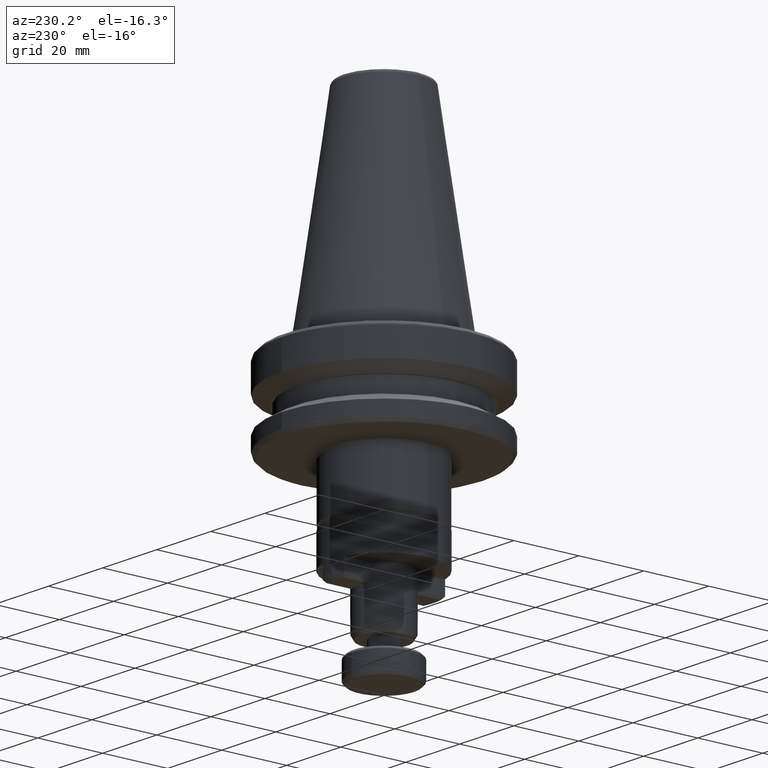
[diagram: clean part render]
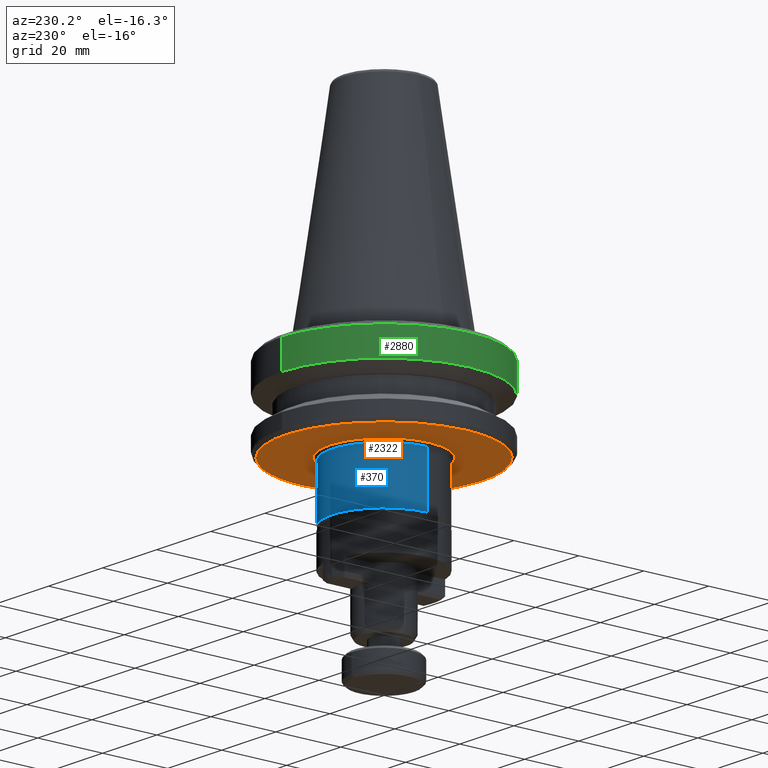
[diagram: same view with three faces highlighted in distinct colors, each labeled with its STEP entity id]
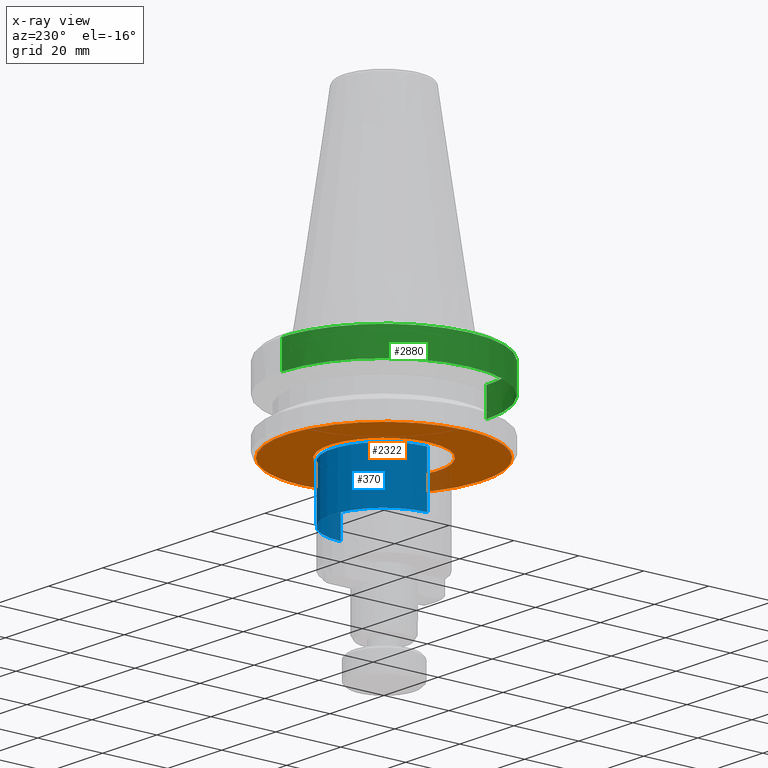
[diagram: x-ray of the same camera — body ghosted, the three highlighted faces saturated]
A machine part, auxiliary view with three faces highlighted in distinct colors.
The next image is the same camera in x-ray (body ghosted, the three faces saturated) — at least one of them is partly hidden behind the body in this view.
Their STEP definitions:

[orange] entity #2322 — the highlighted planar face has unit normal (0, 0, -1).
#2 = CARTESIAN_POINT ( 'NONE',  ( 30.04331833585253300, 4.192089910127879900, -26.99999999999999600 ) ) ;
#5 = CARTESIAN_POINT ( 'NONE',  ( -29.06775511035414500, -8.674176925831343300, -27.00000000000000000 ) ) ;
#8 = CARTESIAN_POINT ( 'NONE',  ( 23.95643994854391700, -18.61528583664868500, -27.00000000000001100 ) ) ;
#16 = CARTESIAN_POINT ( 'NONE',  ( -30.06269572678675300, -4.050319365662467400, -26.99999999999998900 ) ) ;
#19 = CARTESIAN_POINT ( 'NONE',  ( 20.04793994534551900, -22.76514475064298200, -27.00000000000000000 ) ) ;
#30 = CARTESIAN_POINT ( 'NONE',  ( 15.17254742358574800, -26.27005725161817300, -27.00000000000000000 ) ) ;
#37 = CARTESIAN_POINT ( 'NONE',  ( 9.541855753893207400, -28.80612678592317600, -27.00000000000000000 ) ) ;
#48 = CARTESIAN_POINT ( 'NONE',  ( 1.263563823047037000, -30.33429166506620000, -26.99999999999999600 ) ) ;
#63 = CARTESIAN_POINT ( 'NONE',  ( -7.392117946426950900, -29.41994397929652300, -27.00000000000000700 ) ) ;
#69 = CARTESIAN_POINT ( 'NONE',  ( 16.65746162804350300, 2.183820314779148000, -27.00000000000000400 ) ) ;
#70 = CARTESIAN_POINT ( 'NONE',  ( -14.14165373089760400, -26.83635373045095200, -27.00000000000000400 ) ) ;
#82 = CARTESIAN_POINT ( 'NONE',  ( 15.76621584134001200, 5.836628404170791200, -27.00000000000000400 ) ) ;
#84 = CARTESIAN_POINT ( 'NONE',  ( -19.57070440061241400, -23.17743123568942600, -27.00000000000001100 ) ) ;
#95 = CARTESIAN_POINT ( 'NONE',  ( 13.50972393919484700, 9.986455412517333500, -27.00000000000000000 ) ) ;
#106 = CARTESIAN_POINT ( 'NONE',  ( 16.80000001180211900, 0.0000000000000000000, -27.00000000012983700 ) ) ;
#108 = CARTESIAN_POINT ( 'NONE',  ( -30.33431457484533000, 0.6740105366861518500, -26.99999999999999600 ) ) ;
#109 = CARTESIAN_POINT ( 'NONE',  ( 11.43825420641198700, 12.30634176673104600, -26.99999999999999300 ) ) ;
#122 = CARTESIAN_POINT ( 'NONE',  ( -29.30178970371604300, 7.851153117162588100, -26.99999999999999300 ) ) ;
#123 = CARTESIAN_POINT ( 'NONE',  ( 8.891568271636744600, 14.26060993086040400, -26.99999999999998900 ) ) ;
#125 = CARTESIAN_POINT ( 'NONE',  ( -4.219490198969870300, -16.26171388844604200, -27.00000000000000000 ) ) ;
#136 = CARTESIAN_POINT ( 'NONE',  ( -25.95401150602175000, 15.70225232312227200, -26.99999999999998900 ) ) ;
#138 = CARTESIAN_POINT ( 'NONE',  ( 5.284682355026051300, 15.95360373402431100, -26.99999999999999300 ) ) ;
#141 = CARTESIAN_POINT ( 'NONE',  ( 2.436234253822019600, -16.62605259941327800, -26.99999999999999600 ) ) ;
#153 = CARTESIAN_POINT ( 'NONE',  ( -22.58410214239241400, 20.25236861701452500, -26.99999999999999300 ) ) ;
#154 = CARTESIAN_POINT ( 'NONE',  ( -0.8736583917975128100, 16.78367762875002700, -26.99999999999999600 ) ) ;
#155 = CARTESIAN_POINT ( 'NONE',  ( 6.858573566454230000, -15.34262711443975000, -26.99999999999999300 ) ) ;
#168 = CARTESIAN_POINT ( 'NONE',  ( -19.51979269853197300, 23.22646600558523000, -26.99999999999998900 ) ) ;
#169 = CARTESIAN_POINT ( 'NONE',  ( -5.766145520214939400, 15.77970069585762600, -27.00000000000000400 ) ) ;
#172 = CARTESIAN_POINT ( 'NONE',  ( 9.823242625211669600, -13.63239742009921300, -26.99999999999998900 ) ) ;
#188 = CARTESIAN_POINT ( 'NONE',  ( -14.40417093813419500, 26.69636274030405700, -27.00000000000000400 ) ) ;
#189 = CARTESIAN_POINT ( 'NONE',  ( -9.331141013423780000, 13.97073109485240200, -26.99999999999998900 ) ) ;
#191 = CARTESIAN_POINT ( 'NONE',  ( 12.31401116157841000, -11.42831483863634300, -27.00000000000000000 ) ) ;
#198 = CARTESIAN_POINT ( 'NONE',  ( -7.765785046550490700, 29.32352643387784900, -27.00000000000000000 ) ) ;
#200 = CARTESIAN_POINT ( 'NONE',  ( -11.97617496632586400, 11.78350363277799300, -26.99999999999999600 ) ) ;
#204 = CARTESIAN_POINT ( 'NONE',  ( 14.99766007485842900, -7.570874625992690500, -26.99999999999999600 ) ) ;
#209 = CARTESIAN_POINT ( 'NONE',  ( -16.72721238854889900, -1.581702136854497200, -27.00000000000000000 ) ) ;
#215 = CARTESIAN_POINT ( 'NONE',  ( 2.678387280256515600, 30.21875626471112500, -27.00000000000000400 ) ) ;
#217 = CARTESIAN_POINT ( 'NONE',  ( -13.75991087813769700, 9.653479666194165500, -26.99999999999999300 ) ) ;
#221 = CARTESIAN_POINT ( 'NONE',  ( 16.12430298977222200, -4.716674023765818000, -26.99999999999998900 ) ) ;
#224 = CARTESIAN_POINT ( 'NONE',  ( -16.14272080684658300, -4.653246470644934800, -27.00000000000000000 ) ) ;
#229 = CARTESIAN_POINT ( 'NONE',  ( 9.976580335122379900, 28.64972546896873200, -27.00000000000000000 ) ) ;
#231 = CARTESIAN_POINT ( 'NONE',  ( -16.06856102600441700, 4.903836896212856000, -27.00000000000000000 ) ) ;
#240 = CARTESIAN_POINT ( 'NONE',  ( -14.48465032400093100, -8.540268257965555800, -26.99999999999999600 ) ) ;
#244 = CARTESIAN_POINT ( 'NONE',  ( 15.55448809826387100, 26.05439568661753900, -27.00000000000000400 ) ) ;
#245 = CARTESIAN_POINT ( 'NONE',  ( -16.64977876023416700, 2.241649251216415000, -27.00000000000000400 ) ) ;
#251 = CARTESIAN_POINT ( 'NONE',  ( -12.38702524839998500, -11.34913385457411100, -27.00000000000000000 ) ) ;
#259 = CARTESIAN_POINT ( 'NONE',  ( 19.89252192533980700, 22.90107864450741800, -27.00000000000000000 ) ) ;
#272 = CARTESIAN_POINT ( 'NONE',  ( -9.694249589479866800, -13.72089642338204700, -27.00000000000001100 ) ) ;
#273 = PLANE ( 'NONE',  #3413 ) ;
#278 = CARTESIAN_POINT ( 'NONE',  ( 23.99290541595897300, 18.56180435314604800, -26.99999999999998600 ) ) ;
#286 = CARTESIAN_POINT ( 'NONE',  ( -6.396492526146222900, -15.53486162977203700, -27.00000000000000400 ) ) ;
#287 = CARTESIAN_POINT ( 'NONE',  ( -20.95299813303432800, -21.94674450172203400, -27.00000000000000000 ) ) ;
#289 = CARTESIAN_POINT ( 'NONE',  ( 30.06745157541786600, -4.014863191672709800, -27.00000000000000400 ) ) ;
#292 = CARTESIAN_POINT ( 'NONE',  ( 26.16641375505478400, 15.35279778019237400, -27.00000000000000700 ) ) ;
#299 = CARTESIAN_POINT ( 'NONE',  ( -24.22850819644932900, -18.25242520542738200, -27.00000000000001100 ) ) ;
#300 = CARTESIAN_POINT ( 'NONE',  ( 27.89701390751955800, -11.92717983268256400, -26.99999999999999300 ) ) ;
#303 = CARTESIAN_POINT ( 'NONE',  ( 29.01363841857655500, 8.854384036425651400, -27.00000000000000000 ) ) ;
#307 = CARTESIAN_POINT ( 'NONE',  ( -27.08537981853583800, -13.65930904871496500, -27.00000000000000400 ) ) ;
#308 = CARTESIAN_POINT ( 'NONE',  ( 25.98422421869482300, -15.65220437513537300, -26.99999999999999600 ) ) ;
#315 = CARTESIAN_POINT ( 'NONE',  ( 30.05950157680345600, 4.073955391503255400, -27.00000000000000000 ) ) ;
#321 = CARTESIAN_POINT ( 'NONE',  ( -29.10583706064687000, -8.545234707011369200, -26.99999999999999300 ) ) ;
#322 = CARTESIAN_POINT ( 'NONE',  ( 22.88540125800272700, -19.91349571468050400, -27.00000000000000000 ) ) ;
#330 = CARTESIAN_POINT ( 'NONE',  ( -30.24483282093723300, -2.690588715281133900, -27.00000000000000700 ) ) ;
#333 = CARTESIAN_POINT ( 'NONE',  ( 19.97247930315020200, -22.83138023057095700, -27.00000000000000000 ) ) ;
#342 = CARTESIAN_POINT ( 'NONE',  ( 14.53295277558223700, -26.62647715422596700, -26.99999999999999300 ) ) ;
#350 = VERTEX_POINT ( 'NONE', #684 ) ;
#352 = CARTESIAN_POINT ( 'NONE',  ( 7.989465169411512400, -29.26398986218310600, -26.99999999999999600 ) ) ;
#363 = CARTESIAN_POINT ( 'NONE',  ( -1.577747754891373600, -30.30482653326176000, -27.00000000000000000 ) ) ;
#371 = CARTESIAN_POINT ( 'NONE',  ( -8.954237609463891800, -28.99416497502210200, -26.99999999999999300 ) ) ;
#383 = CARTESIAN_POINT ( 'NONE',  ( 16.65307954361651700, 2.217003050522696300, -27.00000000000000400 ) ) ;
#385 = CARTESIAN_POINT ( 'NONE',  ( -14.79203558221994200, -26.48981554118260800, -26.99999999999999300 ) ) ;
#398 = CARTESIAN_POINT ( 'NONE',  ( 15.27978684589985500, 6.985232791886302200, -26.99999999999999600 ) ) ;
#400 = CARTESIAN_POINT ( 'NONE',  ( -19.83908021211152900, -22.94739003378097700, -27.00000000000000400 ) ) ;
#409 = CARTESIAN_POINT ( 'NONE',  ( 13.45998445778654000, 10.05331138406865700, -26.99999999999999600 ) ) ;
#424 = CARTESIAN_POINT ( 'NONE',  ( -30.20288824879281700, 2.856033720204583600, -27.00000000000001100 ) ) ;
#425 = CARTESIAN_POINT ( 'NONE',  ( 11.15945971766271900, 12.55817663479842300, -27.00000000000000700 ) ) ;
#438 = CARTESIAN_POINT ( 'NONE',  ( -29.16730693260817700, 8.333234666969270100, -27.00000000000000000 ) ) ;
#439 = CARTESIAN_POINT ( 'NONE',  ( 8.155562479315632300, 14.68803296345058800, -27.00000000000000700 ) ) ;
#440 = CARTESIAN_POINT ( 'NONE',  ( -3.291201050954463400, -16.48089113451209900, -26.99999999999999600 ) ) ;
#454 = CARTESIAN_POINT ( 'NONE',  ( -25.66765165095962000, 16.17361856587891500, -27.00000000000000700 ) ) ;
#455 = CARTESIAN_POINT ( 'NONE',  ( 4.465997974467923900, 16.19574772590024700, -27.00000000000000400 ) ) ;
#457 = CARTESIAN_POINT ( 'NONE',  ( 3.544351831066392000, -16.42348092701286400, -26.99999999999999600 ) ) ;
#468 = CARTESIAN_POINT ( 'NONE',  ( -22.36612433061047900, 20.49214719189900400, -27.00000000000000400 ) ) ;
#469 = CARTESIAN_POINT ( 'NONE',  ( -1.744222191942702600, 16.71012675191744300, -27.00000000000000400 ) ) ;
#471 = CARTESIAN_POINT ( 'NONE',  ( 7.646730263616601200, -14.95926950665249000, -27.00000000000000000 ) ) ;
#483 = CARTESIAN_POINT ( 'NONE',  ( -18.07767848227892700, 24.36204342587759100, -27.00000000000000400 ) ) ;
#484 = CARTESIAN_POINT ( 'NONE',  ( -6.008172699292377000, 15.68912842352374400, -27.00000000000000400 ) ) ;
#488 = CARTESIAN_POINT ( 'NONE',  ( 10.62862725901639900, -13.01212625495739400, -27.00000000000000000 ) ) ;
#500 = CARTESIAN_POINT ( 'NONE',  ( -13.74248248545894500, 27.04957753098978300, -26.99999999999999600 ) ) ;
#501 = CARTESIAN_POINT ( 'NONE',  ( -9.499006461878345000, 13.85678411336799900, -26.99999999999999600 ) ) ;
#503 = CARTESIAN_POINT ( 'NONE',  ( 12.81695848279230900, -10.86785455004944200, -27.00000000000000000 ) ) ;
#514 = CARTESIAN_POINT ( 'NONE',  ( -7.542857310453992900, 29.38166094418099000, -26.99999999999999300 ) ) ;
#515 = CARTESIAN_POINT ( 'NONE',  ( -12.23583400179550300, 11.51198132718944200, -27.00000000000000000 ) ) ;
#517 = CARTESIAN_POINT ( 'NONE',  ( 15.07179385196494300, -7.421676407982094900, -27.00000000000000400 ) ) ;
#519 = CARTESIAN_POINT ( 'NONE',  ( -16.67233130448083100, -2.068120413304270300, -27.00000000000000400 ) ) ;
#527 = CARTESIAN_POINT ( 'NONE',  ( 3.463349227918373100, 30.13636985357446800, -27.00000000000000400 ) ) ;
#528 = CARTESIAN_POINT ( 'NONE',  ( -14.67314145469041100, 8.189405545134040000, -26.99999999999999600 ) ) ;
#531 = CARTESIAN_POINT ( 'NONE',  ( 16.40044845625033400, -3.685015724597441500, -27.00000000000000700 ) ) ;
#534 = CARTESIAN_POINT ( 'NONE',  ( -16.13216829575721400, -4.689707076936367800, -27.00000000000000400 ) ) ;
#543 = CARTESIAN_POINT ( 'NONE',  ( 10.70073321117281400, 28.38434312203966700, -27.00000000000000400 ) ) ;
#544 = CARTESIAN_POINT ( 'NONE',  ( -16.11121959226692400, 4.761175340002042200, -26.99999999999999600 ) ) ;
#548 = CARTESIAN_POINT ( 'NONE',  ( -13.71534912312514900, -9.703670733502429300, -27.00000000000000000 ) ) ;
#559 = CARTESIAN_POINT ( 'NONE',  ( 16.84852800069187500, 25.22569241739758900, -27.00000000000000000 ) ) ;
#561 = CARTESIAN_POINT ( 'NONE',  ( -16.79999999916474400, 0.7468372991999602300, -27.00000000000000700 ) ) ;
#566 = CARTESIAN_POINT ( 'NONE',  ( -12.13442169199043300, -11.62266805888582200, -27.00000000000000700 ) ) ;
#572 = CARTESIAN_POINT ( 'NONE',  ( 20.35475882437910400, 22.49776777162285100, -27.00000000000000700 ) ) ;
#579 = CARTESIAN_POINT ( 'NONE',  ( -9.599177282996720400, -13.78758136212871400, -27.00000000000000700 ) ) ;
#580 = DIRECTION ( 'NONE',  ( 0.0000000000000000000, 0.0000000000000000000, -1.000000000000000000 ) ) ;
#584 = CARTESIAN_POINT ( 'NONE',  ( 24.18944583506349100, 18.30416128124226200, -27.00000000000000000 ) ) ;
#588 = CARTESIAN_POINT ( 'NONE',  ( -6.165683984182218000, -15.62790939771404200, -27.00000000000000400 ) ) ;
#589 = CARTESIAN_POINT ( 'NONE',  ( -21.95360301437554200, -20.93423755943052100, -27.00000000000001100 ) ) ;
#592 = CARTESIAN_POINT ( 'NONE',  ( 29.77054002071780300, -5.908407303469501500, -27.00000000000000700 ) ) ;
#597 = CARTESIAN_POINT ( 'NONE',  ( 26.89983123152540000, 14.02375570378933000, -26.99999999999999600 ) ) ;
#605 = CARTESIAN_POINT ( 'NONE',  ( -24.56329777486533000, -17.80614134565118400, -26.99999999999999600 ) ) ;
#606 = CARTESIAN_POINT ( 'NONE',  ( 27.42994211300421300, -12.95336298931259500, -27.00000000000000000 ) ) ;
#610 = CARTESIAN_POINT ( 'NONE',  ( 29.09446477738482500, 8.583937720213416600, -26.99999999999999300 ) ) ;
#613 = CARTESIAN_POINT ( 'NONE',  ( -27.34883660899150500, 13.12314260327236500, -26.99999999999999300 ) ) ;
#616 = CARTESIAN_POINT ( 'NONE',  ( -27.22183174185582600, -13.38446627065113300, -27.00000000000000700 ) ) ;
#617 = CARTESIAN_POINT ( 'NONE',  ( 25.93968945698781100, -15.72590437763287600, -26.99999999999999300 ) ) ;
#623 = CARTESIAN_POINT ( 'NONE',  ( 30.06447116071621700, 4.037117130667747100, -27.00000000000000400 ) ) ;
#629 = CARTESIAN_POINT ( 'NONE',  ( -29.11760386127893300, -8.505052381505967300, -26.99999999999998900 ) ) ;
#630 = CARTESIAN_POINT ( 'NONE',  ( 22.43177005379504500, -20.42042119967301200, -26.99999999999999600 ) ) ;
#637 = CARTESIAN_POINT ( 'NONE',  ( -30.33431456895414500, 0.0000000000000000000, -27.00000000001086800 ) ) ;
#638 = CARTESIAN_POINT ( 'NONE',  ( 18.86604382642358100, -23.76561622376904700, -27.00000000000000000 ) ) ;
#652 = CARTESIAN_POINT ( 'NONE',  ( 14.34153269952471300, -26.73007095302435600, -27.00000000000000400 ) ) ;
#659 = CARTESIAN_POINT ( 'NONE',  ( 7.616483056192405100, -29.36265820173050800, -27.00000000000000400 ) ) ;
#669 = CARTESIAN_POINT ( 'NONE',  ( -3.149449800075215600, -30.17080025199758000, -27.00000000000000400 ) ) ;
#683 = CARTESIAN_POINT ( 'NONE',  ( -10.48404356783884200, -28.46572494218980200, -27.00000000000000700 ) ) ;
#684 = CARTESIAN_POINT ( 'NONE',  ( 30.33431456895414500, 0.0000000000000000000, -27.00000000001087500 ) ) ;
#695 = CARTESIAN_POINT ( 'NONE',  ( 16.48779329790024700, 3.272112353494437600, -26.99999999999999600 ) ) ;
#697 = CARTESIAN_POINT ( 'NONE',  ( -16.42101489038217100, -25.50828098562485700, -27.00000000000000700 ) ) ;
#709 = CARTESIAN_POINT ( 'NONE',  ( 15.14656379438475600, 7.267951973468197700, -27.00000000000000000 ) ) ;
#719 = CARTESIAN_POINT ( 'NONE',  ( 13.26780176787147000, 10.30961244749451700, -27.00000000000000400 ) ) ;
#733 = CARTESIAN_POINT ( 'NONE',  ( -30.10379419710160700, 3.734255300371827500, -27.00000000000000000 ) ) ;
#735 = CARTESIAN_POINT ( 'NONE',  ( 11.07606315789133300, 12.63179779849945400, -27.00000000000000000 ) ) ;
#747 = CARTESIAN_POINT ( 'NONE',  ( -29.13426461266707800, 8.447802841272062900, -27.00000000000000000 ) ) ;
#748 = CARTESIAN_POINT ( 'NONE',  ( -27.29033024351053900, 13.24419357006481100, -26.99999999999999300 ) ) ;
#749 = CARTESIAN_POINT ( 'NONE',  ( 7.977452292124218600, 14.78518995643228400, -27.00000000000000700 ) ) ;
#751 = CARTESIAN_POINT ( 'NONE',  ( -2.436070444623801300, -16.62334888941230600, -26.99999999999999600 ) ) ;
#763 = CARTESIAN_POINT ( 'NONE',  ( -24.77677519881482100, 17.50396970134469000, -26.99999999999999600 ) ) ;
#764 = CARTESIAN_POINT ( 'NONE',  ( 4.219490198970636800, 16.26171388844536000, -27.00000000000000400 ) ) ;
#767 = CARTESIAN_POINT ( 'NONE',  ( 3.966875557610698000, -16.32517571458379300, -27.00000000000000400 ) ) ;
#781 = CARTESIAN_POINT ( 'NONE',  ( -22.30133716546508500, 20.56263888184629700, -27.00000000000000700 ) ) ;
#783 = CARTESIAN_POINT ( 'NONE',  ( -2.436234253832570800, 16.62605259940865600, -26.99999999999999600 ) ) ;
#785 = CARTESIAN_POINT ( 'NONE',  ( 7.832029977681391300, -14.86273841501191100, -26.99999999999999600 ) ) ;
#802 = CARTESIAN_POINT ( 'NONE',  ( -17.47517895630797800, 24.79510947114443200, -26.99999999999999600 ) ) ;
#803 = CARTESIAN_POINT ( 'NONE',  ( -6.858573566450378900, 15.34262711444389800, -27.00000000000000000 ) ) ;
#804 = CARTESIAN_POINT ( 'NONE',  ( 10.92807395822601500, -12.76004177534551900, -27.00000000000000400 ) ) ;
#812 = CARTESIAN_POINT ( 'NONE',  ( -11.96733973171532200, 27.87676735266893900, -27.00000000000000000 ) ) ;
#813 = CARTESIAN_POINT ( 'NONE',  ( -9.823242625185184100, 13.63239742011755200, -26.99999999999999600 ) ) ;
#817 = CARTESIAN_POINT ( 'NONE',  ( 13.28791113911846900, -10.28009620157885400, -26.99999999999999300 ) ) ;
#828 = CARTESIAN_POINT ( 'NONE',  ( -5.942386583572240300, 29.75817487964053100, -26.99999999999998900 ) ) ;
#829 = CARTESIAN_POINT ( 'NONE',  ( -12.31401116157781700, 11.42831483863724400, -27.00000000000000000 ) ) ;
#834 = VERTEX_POINT ( 'NONE', #3476 ) ;
#835 = CARTESIAN_POINT ( 'NONE',  ( 15.09459909490638200, -7.375180324039974700, -27.00000000000000400 ) ) ;
#839 = CARTESIAN_POINT ( 'NONE',  ( -16.65746162804351400, -2.183820314780466000, -27.00000000000000700 ) ) ;
#846 = CARTESIAN_POINT ( 'NONE',  ( 4.399042581743925600, 30.02020546250254200, -26.99999999999999600 ) ) ;
#848 = CARTESIAN_POINT ( 'NONE',  ( -14.99766007485959600, 7.570874625991860900, -26.99999999999999300 ) ) ;
#852 = VERTEX_POINT ( 'NONE', #2852 ) ;
#853 = CARTESIAN_POINT ( 'NONE',  ( 16.59880681861002600, -2.596035087452236200, -26.99999999999999600 ) ) ;
#857 = CARTESIAN_POINT ( 'NONE',  ( -15.76621584133573400, -5.836628404185458600, -26.99999999999998600 ) ) ;
#861 = CARTESIAN_POINT ( 'NONE',  ( 10.91872159205938600, 28.30119732552778800, -27.00000000000000700 ) ) ;
#862 = CARTESIAN_POINT ( 'NONE',  ( -16.12430298977233900, 4.716674023764968000, -26.99999999999999300 ) ) ;
#868 = CARTESIAN_POINT ( 'NONE',  ( -13.50972393919426300, -9.986455412517743800, -27.00000000000000700 ) ) ;
#874 = CARTESIAN_POINT ( 'NONE',  ( 17.15153278350643300, 25.01992883285337400, -26.99999999999999300 ) ) ;
#879 = CARTESIAN_POINT ( 'NONE',  ( -11.43825420641982900, -12.30634176672551800, -27.00000000000000000 ) ) ;
#887 = CARTESIAN_POINT ( 'NONE',  ( 21.62447890233324400, 21.27633189452221900, -27.00000000000000400 ) ) ;
#892 = CARTESIAN_POINT ( 'NONE',  ( -8.891568271659277700, -14.26060993084736600, -27.00000000000000000 ) ) ;
#894 = CARTESIAN_POINT ( 'NONE',  ( 30.33431457484533000, -0.6740105366518855900, -27.00000000000000700 ) ) ;
#902 = CARTESIAN_POINT ( 'NONE',  ( 24.24896127769082100, 18.22524170751803800, -27.00000000000000700 ) ) ;
#908 = CARTESIAN_POINT ( 'NONE',  ( -22.18597426809393300, -20.68705545005600000, -27.00000000000000400 ) ) ;
#909 = CARTESIAN_POINT ( 'NONE',  ( 29.30178970371666500, -7.851153117187577000, -27.00000000000000700 ) ) ;
#910 = B_SPLINE_CURVE_WITH_KNOTS ( 'NONE', 3,
 ( #1950, #108, #2264, #424, #2571, #733, #2884, #1046, #3194, #1359, #3495, #1656, #3818, #1962, #122, #2281, #438, #2584, #747, #2901, #1057, #3207, #1375, #3509, #1670, #3829, #613, #2585, #748, #2903, #1058, #3208, #1376, #3510, #1671, #3830, #1981, #136, #2296, #454, #2601, #763, #2915, #1078, #3219, #1389, #3528, #1684, #3846, #1994, #153, #2307, #468, #2618, #781, #2932, #1091, #3239, #1405, #3542, #1702, #3860, #2010, #168, #2330, #483, #2634, #802, #2947, #1107, #3256, #1424, #3555, #1716, #3879, #2024, #188, #2341, #500, #2649, #812, #2964, #1121, #3271, #1437, #3573, #1729, #3889, #2040, #198, #2355, #514, #2663, #828, #2979, #1136, #3281, #1453, #3588, #1744, #3901, #2052, #215, #2364, #527, #2679, #846, #2993, #1149, #3299, #1465, #3603, #1759, #3914, #2066, #229, #2380, #543, #2695, #861, #3003, #1161, #3310, #1481, #3618, #1772, #3928, #2081, #244, #2392, #559, #2709, #874, #3018, #1173, #3325, #1492, #3634, #1784, #3940, #2097, #259, #2407, #572, #2724, #887, #3032, #1189, #3336, #1507, #3646, #1801, #3953, #2110, #278, #2421, #584, #2737, #902, #3046, #1201, #3356, #1520, #3663, #1812, #3974, #2122, #292, #2437, #597, #2748, #912, #3059, #1210, #3369, #1535, #3674, #1828, #3982, #2138, #303, #2449, #610, #2761, #928, #3073, #1226, #3382, #1546, #3689, #1838, #2, #2149, #315, #2459, #623, #2772, #1026, #3174 ),
 .UNSPECIFIED., .F., .F.,
 ( 4, 1, 1, 1, 1, 1, 1, 2, 2, 1, 1, 1, 1, 1, 1, 2, 2, 1, 1, 1, 1, 1, 1, 2, 2, 1, 1, 1, 1, 2, 2, 1, 1, 1, 1, 2, 2, 1, 1, 1, 1, 2, 2, 1, 1, 1, 1, 2, 2, 1, 1, 1, 1, 2, 2, 1, 1, 1, 2, 2, 1, 1, 1, 2, 2, 1, 1, 1, 2, 2, 1, 1, 2, 2, 2, 1, 1, 2, 2, 1, 1, 1, 2, 2, 1, 1, 1, 2, 2, 1, 1, 1, 2, 2, 1, 1, 1, 1, 2, 2, 1, 1, 1, 1, 2, 2, 1, 1, 1, 1, 2, 2, 1, 1, 1, 1, 2, 2, 1, 1, 1, 1, 2, 2, 1, 1, 1, 1, 1, 2, 2, 1, 1, 1, 1, 1, 1, 2, 2, 1, 1, 1, 1, 1, 1, 2, 2, 4 ),
 ( 0.0000000000000000000, 0.03124999999999379700, 0.04687499999999070200, 0.05468749999998915500, 0.05859374999998839100, 0.06054687499998798200, 0.06152343749998776000, 0.06201171874998765600, 0.06249999999998755200, 0.09374999999998276400, 0.1093749999999803500, 0.1171874999999791800, 0.1210937499999785400, 0.1230468749999782400, 0.1240234374999780600, 0.1245117187499780000, 0.1249999999999779300, 0.1562499999999755200, 0.1718749999999743500, 0.1796874999999737400, 0.1835937499999734400, 0.1855468749999733000, 0.1865234374999732200, 0.1870117187499731600, 0.1874999999999731300, 0.2031249999999722700, 0.2109374999999718000, 0.2148437499999715500, 0.2167968749999714700, 0.2177734374999713800, 0.2187499999999713000, 0.2343749999999710800, 0.2421874999999709700, 0.2460937499999709400, 0.2480468749999709400, 0.2490234374999709700, 0.2499999999999710200, 0.2656249999999715800, 0.2734374999999718600, 0.2773437499999719100, 0.2792968749999719100, 0.2802734374999719100, 0.2812499999999718600, 0.2968749999999722400, 0.3046874999999724700, 0.3085937499999725800, 0.3105468749999726300, 0.3115234374999726900, 0.3124999999999726900, 0.3281249999999726900, 0.3359374999999726300, 0.3398437499999725800, 0.3417968749999725800, 0.3427734374999725800, 0.3437499999999726300, 0.3593749999999726300, 0.3671874999999725800, 0.3710937499999725200, 0.3730468749999724700, 0.3749999999999724100, 0.3906249999999720800, 0.3984374999999719100, 0.4023437499999718600, 0.4042968749999718000, 0.4062499999999717400, 0.4218749999999711900, 0.4296874999999709100, 0.4335937499999708000, 0.4355468749999707500, 0.4374999999999706900, 0.4531249999999700200, 0.4609374999999696400, 0.4648437499999694700, 0.4687499999999693000, 0.4999999999999679100, 0.5156249999999672500, 0.5234374999999669200, 0.5273437499999666900, 0.5312499999999664700, 0.5468749999999658100, 0.5546874999999654700, 0.5585937499999653600, 0.5605468749999653600, 0.5624999999999652500, 0.5781249999999646900, 0.5859374999999644700, 0.5898437499999643600, 0.5917968749999643600, 0.5937499999999642500, 0.6093749999999639200, 0.6171874999999638100, 0.6210937499999637000, 0.6230468749999637000, 0.6249999999999635800, 0.6406249999999635800, 0.6484374999999634700, 0.6523437499999634700, 0.6542968749999633600, 0.6552734374999632500, 0.6562499999999632500, 0.6718749999999630300, 0.6796874999999629200, 0.6835937499999628100, 0.6855468749999627000, 0.6865234374999627000, 0.6874999999999628100, 0.7031249999999624700, 0.7109374999999622500, 0.7148437499999621400, 0.7167968749999621400, 0.7177734374999622500, 0.7187499999999622500, 0.7343749999999628100, 0.7421874999999630300, 0.7460937499999631400, 0.7480468749999631400, 0.7490234374999632500, 0.7499999999999632500, 0.7656249999999660300, 0.7734374999999673600, 0.7773437499999680300, 0.7792968749999683600, 0.7802734374999684700, 0.7812499999999685800, 0.7968749999999716900, 0.8046874999999732400, 0.8085937499999740200, 0.8105468749999744600, 0.8115234374999745800, 0.8120117187499746900, 0.8124999999999748000, 0.8437499999999805700, 0.8593749999999834600, 0.8671874999999849000, 0.8710937499999855700, 0.8730468749999860100, 0.8740234374999862300, 0.8745117187499863400, 0.8749999999999864600, 0.9062499999999895600, 0.9218749999999911200, 0.9296874999999919000, 0.9335937499999922300, 0.9355468749999923400, 0.9365234374999924500, 0.9370117187499925600, 0.9374999999999925600, 1.000000000000000000 ),
 .UNSPECIFIED. ) ;
#912 = CARTESIAN_POINT ( 'NONE',  ( 27.17660581662907400, 13.47622412878006800, -27.00000000000000000 ) ) ;
#921 = CARTESIAN_POINT ( 'NONE',  ( -25.46661501852462100, -16.48420604147238000, -27.00000000000000000 ) ) ;
#923 = CARTESIAN_POINT ( 'NONE',  ( 27.30793454930152100, -13.20789838398157400, -27.00000000000000400 ) ) ;
#928 = CARTESIAN_POINT ( 'NONE',  ( 29.11340197906474700, 8.519426238675443100, -26.99999999999999300 ) ) ;
#931 = CARTESIAN_POINT ( 'NONE',  ( -27.25397930140365000, -13.31883775848418200, -26.99999999999999600 ) ) ;
#933 = CARTESIAN_POINT ( 'NONE',  ( 25.26859551765282700, -16.79569564040834000, -26.99999999999999600 ) ) ;
#942 = CARTESIAN_POINT ( 'NONE',  ( -29.61292853113878800, -6.653480282939932900, -27.00000000000000700 ) ) ;
#945 = CARTESIAN_POINT ( 'NONE',  ( 22.32228039465907100, -20.53989862152687000, -27.00000000000000400 ) ) ;
#947 = FACE_OUTER_BOUND ( 'NONE', #2101, .T. ) ;
#953 = CARTESIAN_POINT ( 'NONE',  ( 17.67708122858955000, -24.65211168045468400, -27.00000000000000400 ) ) ;
#963 = CARTESIAN_POINT ( 'NONE',  ( 12.93237356980961600, -27.45111927655594300, -27.00000000000000000 ) ) ;
#973 = CARTESIAN_POINT ( 'NONE',  ( 6.859315343780072500, -29.55527189390769400, -27.00000000000000000 ) ) ;
#979 = VERTEX_POINT ( 'NONE', #106 ) ;
#987 = CARTESIAN_POINT ( 'NONE',  ( -3.621533451807483300, -30.11776097216427300, -27.00000000000000000 ) ) ;
#993 = CARTESIAN_POINT ( 'NONE',  ( 16.80000001180211900, 0.0000000000000000000, -27.00000000012983700 ) ) ;
#994 = CARTESIAN_POINT ( 'NONE',  ( -10.84501639574719800, -28.32952758605233600, -27.00000000000000700 ) ) ;
#1005 = CARTESIAN_POINT ( 'NONE',  ( 16.22817062933007300, 4.348133225379895000, -26.99999999999999300 ) ) ;
#1006 = CARTESIAN_POINT ( 'NONE',  ( -17.06084698436894000, -25.08201532888988400, -26.99999999999999600 ) ) ;
#1016 = CARTESIAN_POINT ( 'NONE',  ( 15.11416182228078000, 7.335005777229214100, -26.99999999999999300 ) ) ;
#1026 = CARTESIAN_POINT ( 'NONE',  ( 30.33431457484534000, 1.348362406678144800, -27.00000000000000400 ) ) ;
#1035 = CARTESIAN_POINT ( 'NONE',  ( 12.67464555827184300, 11.02857945215106600, -26.99999999999998900 ) ) ;
#1046 = CARTESIAN_POINT ( 'NONE',  ( -30.07557991849508400, 3.953587874259713700, -27.00000000000000000 ) ) ;
#1048 = CARTESIAN_POINT ( 'NONE',  ( 10.44865353783709100, 13.16198725380308900, -27.00000000000000000 ) ) ;
#1057 = CARTESIAN_POINT ( 'NONE',  ( -29.12470593090316800, 8.480702336767240700, -26.99999999999999600 ) ) ;
#1058 = CARTESIAN_POINT ( 'NONE',  ( -27.27320000693017100, 13.27943525741809000, -27.00000000000000700 ) ) ;
#1060 = CARTESIAN_POINT ( 'NONE',  ( 7.611045854938514500, 14.98078721223218300, -26.99999999999998900 ) ) ;
#1062 = CARTESIAN_POINT ( 'NONE',  ( -1.397642214275144600, -16.75639730441554300, -27.00000000000000400 ) ) ;
#1078 = CARTESIAN_POINT ( 'NONE',  ( -24.39642347149096200, 18.02752664199817900, -27.00000000000000000 ) ) ;
#1079 = CARTESIAN_POINT ( 'NONE',  ( 3.291201050949069900, 16.48089113451686000, -27.00000000000000000 ) ) ;
#1082 = CARTESIAN_POINT ( 'NONE',  ( 4.466676150748100800, -16.19895075757864300, -26.99999999999999600 ) ) ;
#1091 = CARTESIAN_POINT ( 'NONE',  ( -21.34217322681336500, 21.56847987848519200, -26.99999999999999600 ) ) ;
#1092 = CARTESIAN_POINT ( 'NONE',  ( -3.544351831080244900, 16.42348092700680000, -27.00000000000000400 ) ) ;
#1095 = CARTESIAN_POINT ( 'NONE',  ( 8.192182267056948000, -14.67084745437714400, -26.99999999999999600 ) ) ;
#1107 = CARTESIAN_POINT ( 'NONE',  ( -17.33031395297501100, 24.89642651871475100, -26.99999999999999600 ) ) ;
#1108 = CARTESIAN_POINT ( 'NONE',  ( -7.646730263614895900, 14.95926950665430500, -26.99999999999998900 ) ) ;
#1111 = CARTESIAN_POINT ( 'NONE',  ( 11.01827409764676300, -12.68223195294227800, -27.00000000000000700 ) ) ;
#1121 = CARTESIAN_POINT ( 'NONE',  ( -11.26985385272362100, 28.16321601848958500, -26.99999999999999600 ) ) ;
#1123 = CARTESIAN_POINT ( 'NONE',  ( -10.62862725898163100, 13.01212625498145300, -26.99999999999999300 ) ) ;
#1125 = CARTESIAN_POINT ( 'NONE',  ( 13.39678643634309400, -10.13737545150792300, -27.00000000000000700 ) ) ;
#1136 = CARTESIAN_POINT ( 'NONE',  ( -4.398246003733861500, 30.01418396580942600, -27.00000000000000400 ) ) ;
#1138 = CARTESIAN_POINT ( 'NONE',  ( -12.81695848280052600, 10.86785455003680800, -26.99999999999999300 ) ) ;
#1141 = CARTESIAN_POINT ( 'NONE',  ( 15.59485513682316200, -6.280149034653418600, -26.99999999999999600 ) ) ;
#1145 = CARTESIAN_POINT ( 'NONE',  ( -16.65307954361662400, -2.217003050522374300, -27.00000000000001100 ) ) ;
#1149 = CARTESIAN_POINT ( 'NONE',  ( 6.399920150539871100, 29.65443070420657500, -27.00000000000000000 ) ) ;
#1150 = CARTESIAN_POINT ( 'NONE',  ( -15.07179385196529400, 7.421676407981846200, -26.99999999999999300 ) ) ;
#1155 = CARTESIAN_POINT ( 'NONE',  ( 16.63883472487454200, -2.321713567545472800, -27.00000000000000000 ) ) ;
#1157 = CARTESIAN_POINT ( 'NONE',  ( -15.27978684589798200, -6.985232791892720200, -26.99999999999999300 ) ) ;
#1161 = CARTESIAN_POINT ( 'NONE',  ( 12.38416052610304700, 27.70275857562854000, -27.00000000000001400 ) ) ;
#1162 = CARTESIAN_POINT ( 'NONE',  ( -16.40044845624393600, 3.685015724645092700, -27.00000000000000000 ) ) ;
#1168 = CARTESIAN_POINT ( 'NONE',  ( -13.45998445778636400, -10.05331138406876900, -26.99999999999999600 ) ) ;
#1173 = CARTESIAN_POINT ( 'NONE',  ( 17.24315223981296100, 24.95687390976223700, -27.00000000000000400 ) ) ;
#1184 = CARTESIAN_POINT ( 'NONE',  ( -11.15945971766546300, -12.55817663479648500, -27.00000000000000000 ) ) ;
#1189 = CARTESIAN_POINT ( 'NONE',  ( 22.11651100218916400, 20.76146838405964700, -27.00000000000000000 ) ) ;
#1196 = CARTESIAN_POINT ( 'NONE',  ( -8.155562479325478600, -14.68803296344488600, -27.00000000000000000 ) ) ;
#1198 = CARTESIAN_POINT ( 'NONE',  ( 30.20288824879281000, -2.856033720159603100, -27.00000000000000000 ) ) ;
#1201 = CARTESIAN_POINT ( 'NONE',  ( 24.99221180772177700, 17.20426226630679900, -26.99999999999999300 ) ) ;
#1205 = CARTESIAN_POINT ( 'NONE',  ( -22.25632787284958900, -20.61134462702860000, -27.00000000000000700 ) ) ;
#1206 = CARTESIAN_POINT ( 'NONE',  ( 29.16730693260833400, -8.333234666976190800, -26.99999999999999300 ) ) ;
#1210 = CARTESIAN_POINT ( 'NONE',  ( 27.24113133683257400, 13.34509531759153800, -27.00000000000000000 ) ) ;
#1217 = CARTESIAN_POINT ( 'NONE',  ( -25.81104396035033900, -15.93634838797775400, -27.00000000000000400 ) ) ;
#1218 = CARTESIAN_POINT ( 'NONE',  ( 27.27857740594732800, -13.26838397859152400, -26.99999999999999600 ) ) ;
#1226 = CARTESIAN_POINT ( 'NONE',  ( 29.33458234848915300, 7.761172850380900100, -27.00000000000000000 ) ) ;
#1231 = CARTESIAN_POINT ( 'NONE',  ( -27.64383232676313900, -12.51919696689708600, -27.00000000000000400 ) ) ;
#1232 = CARTESIAN_POINT ( 'NONE',  ( 24.52430133183192500, -17.85373610038117300, -27.00000000000000000 ) ) ;
#1244 = CARTESIAN_POINT ( 'NONE',  ( -29.97105914676766900, -4.687334143261349300, -27.00000000000000400 ) ) ;
#1246 = CARTESIAN_POINT ( 'NONE',  ( 21.90998207723676900, -20.98614834863420200, -26.99999999999999600 ) ) ;
#1258 = CARTESIAN_POINT ( 'NONE',  ( 17.38830577275359700, -24.85595788072957600, -27.00000000000000400 ) ) ;
#1269 = CARTESIAN_POINT ( 'NONE',  ( 11.47984612031571700, -28.07888706724523000, -26.99999999999999600 ) ) ;
#1278 = CARTESIAN_POINT ( 'NONE',  ( 4.862942288947711400, -29.94488303860136100, -26.99999999999999600 ) ) ;
#1291 = CARTESIAN_POINT ( 'NONE',  ( -5.326782175416275000, -29.87450980412676300, -27.00000000000000000 ) ) ;
#1303 = CARTESIAN_POINT ( 'NONE',  ( 16.78141592836921000, 0.9319450320397516500, -26.99999999999999600 ) ) ;
#1305 = CARTESIAN_POINT ( 'NONE',  ( -11.55153968856713200, -28.05525649181115700, -27.00000000000000400 ) ) ;
#1321 = CARTESIAN_POINT ( 'NONE',  ( 16.15368155082216400, 4.615164877328052000, -27.00000000000000000 ) ) ;
#1323 = CARTESIAN_POINT ( 'NONE',  ( -17.21192152713780400, -24.97842436862835300, -27.00000000000000700 ) ) ;
#1330 = CARTESIAN_POINT ( 'NONE',  ( 14.86750483971417000, 7.841052166597132900, -27.00000000000000000 ) ) ;
#1346 = CARTESIAN_POINT ( 'NONE',  ( 12.43542245903125800, 11.29608288899840600, -27.00000000000000000 ) ) ;
#1359 = CARTESIAN_POINT ( 'NONE',  ( -30.06866015639782900, 4.005796829339836900, -26.99999999999998900 ) ) ;
#1360 = CARTESIAN_POINT ( 'NONE',  ( 9.790113007807265800, 13.65299965783376400, -26.99999999999999600 ) ) ;
#1375 = CARTESIAN_POINT ( 'NONE',  ( -28.46761302131537300, 10.53892102966618600, -26.99999999999999300 ) ) ;
#1376 = CARTESIAN_POINT ( 'NONE',  ( -26.74048878061317000, 14.33527943307420000, -26.99999999999999300 ) ) ;
#1377 = CARTESIAN_POINT ( 'NONE',  ( 6.627943855695124700, 15.43889808852070200, -26.99999999999999300 ) ) ;
#1378 = CARTESIAN_POINT ( 'NONE',  ( 0.3498170243538950000, -16.80001145193555300, -26.99999999999999600 ) ) ;
#1389 = CARTESIAN_POINT ( 'NONE',  ( -24.30441795797189300, 18.15122047688791400, -27.00000000000000400 ) ) ;
#1390 = CARTESIAN_POINT ( 'NONE',  ( 2.436070444621104300, 16.62334888941468900, -27.00000000000000400 ) ) ;
#1393 = CARTESIAN_POINT ( 'NONE',  ( 5.525212012460007900, -15.86705900878452400, -27.00000000000000000 ) ) ;
#1405 = CARTESIAN_POINT ( 'NONE',  ( -20.30162836902196200, 22.53989472961745800, -27.00000000000000700 ) ) ;
#1406 = CARTESIAN_POINT ( 'NONE',  ( -3.966875557615644700, 16.32517571458162200, -27.00000000000000700 ) ) ;
#1409 = CARTESIAN_POINT ( 'NONE',  ( 9.094336776358741000, -14.12725826996824300, -26.99999999999999300 ) ) ;
#1424 = CARTESIAN_POINT ( 'NONE',  ( -16.79048312168871200, 25.27042344624179600, -26.99999999999999300 ) ) ;
#1425 = CARTESIAN_POINT ( 'NONE',  ( -7.832029977680848600, 14.86273841501247300, -26.99999999999999600 ) ) ;
#1427 = CARTESIAN_POINT ( 'NONE',  ( 11.60426592584443200, -12.15482047367719100, -27.00000000000000000 ) ) ;
#1437 = CARTESIAN_POINT ( 'NONE',  ( -11.06095708149795300, 28.24591548341257400, -27.00000000000000000 ) ) ;
#1438 = CARTESIAN_POINT ( 'NONE',  ( -10.92807395821381700, 12.76004177535397100, -27.00000000000000000 ) ) ;
#1441 = CARTESIAN_POINT ( 'NONE',  ( 13.43000278436920400, -10.09332876018049400, -27.00000000000000700 ) ) ;
#1443 = CARTESIAN_POINT ( 'NONE',  ( -16.79999999916474700, -0.3732479829248062700, -26.99999999999999600 ) ) ;
#1453 = CARTESIAN_POINT ( 'NONE',  ( -3.933751252119560800, 30.07858067690391100, -27.00000000000000000 ) ) ;
#1454 = CARTESIAN_POINT ( 'NONE',  ( -13.28791113912205500, 10.28009620157332000, -26.99999999999998900 ) ) ;
#1457 = CARTESIAN_POINT ( 'NONE',  ( 16.00706372864509000, -5.102868573390541200, -27.00000000000000000 ) ) ;
#1461 = CARTESIAN_POINT ( 'NONE',  ( -16.48779329789498900, -3.272112353512508500, -26.99999999999999600 ) ) ;
#1465 = CARTESIAN_POINT ( 'NONE',  ( 7.162658484017198300, 29.47665421974466700, -27.00000000000000700 ) ) ;
#1467 = CARTESIAN_POINT ( 'NONE',  ( -15.09459909490667300, 7.375180324039464000, -26.99999999999999300 ) ) ;
#1469 = CARTESIAN_POINT ( 'NONE',  ( 16.64780361950888100, -2.256276974959800600, -27.00000000000000000 ) ) ;
#1472 = CARTESIAN_POINT ( 'NONE',  ( -15.14656379438422800, -7.267951973469969600, -27.00000000000000000 ) ) ;
#1481 = CARTESIAN_POINT ( 'NONE',  ( 13.80714107832444300, 27.01062075878225600, -26.99999999999998900 ) ) ;
#1483 = CARTESIAN_POINT ( 'NONE',  ( -16.59880681860724400, 2.596035087473080000, -26.99999999999999600 ) ) ;
#1487 = CARTESIAN_POINT ( 'NONE',  ( -13.26780176788382300, -10.30961244747902200, -27.00000000000000400 ) ) ;
#1489 = CARTESIAN_POINT ( 'NONE',  ( 30.33431456895414500, 0.0000000000000000000, -27.00000000001087500 ) ) ;
#1492 = CARTESIAN_POINT ( 'NONE',  ( 18.41996269768417700, 24.11300580329543300, -26.99999999999999300 ) ) ;
#1500 = CARTESIAN_POINT ( 'NONE',  ( -11.07606315789106700, -12.63179779849981800, -27.00000000000000000 ) ) ;
#1507 = CARTESIAN_POINT ( 'NONE',  ( 22.23220434686535900, 20.63736482702491800, -27.00000000000000000 ) ) ;
#1514 = CARTESIAN_POINT ( 'NONE',  ( -7.977452292127342300, -14.78518995643048800, -27.00000000000000000 ) ) ;
#1516 = CARTESIAN_POINT ( 'NONE',  ( 30.10379419710161700, -3.734255300357771200, -26.99999999999999600 ) ) ;
#1520 = CARTESIAN_POINT ( 'NONE',  ( 25.69731750031988300, 16.11971193772581400, -26.99999999999999300 ) ) ;
#1530 = CARTESIAN_POINT ( 'NONE',  ( -23.14263354261281000, -19.62296503522824400, -27.00000000000000000 ) ) ;
#1531 = CARTESIAN_POINT ( 'NONE',  ( 29.13426461266712800, -8.447802841274084400, -26.99999999999999600 ) ) ;
#1535 = CARTESIAN_POINT ( 'NONE',  ( 27.26090848176184200, 13.30464868641272800, -27.00000000000000000 ) ) ;
#1539 = CARTESIAN_POINT ( 'NONE',  ( -25.89161949666544500, -15.80492250809308000, -27.00000000000000400 ) ) ;
#1540 = CARTESIAN_POINT ( 'NONE',  ( 27.06198716685152300, -13.71271061830905000, -27.00000000000000000 ) ) ;
#1546 = CARTESIAN_POINT ( 'NONE',  ( 29.86396562764328500, 5.345352775272209200, -27.00000000000000400 ) ) ;
#1551 = CARTESIAN_POINT ( 'NONE',  ( -28.66941225224598000, -9.928030280981740700, -27.00000000000000000 ) ) ;
#1552 = CARTESIAN_POINT ( 'NONE',  ( 24.34126704699827200, -18.10177416173495900, -26.99999999999999600 ) ) ;
#1559 = CARTESIAN_POINT ( 'NONE',  ( -30.04331833585407500, -4.192089910119944000, -27.00000000000000000 ) ) ;
#1560 = CARTESIAN_POINT ( 'NONE',  ( 20.65294135689086400, -22.22062933403333000, -26.99999999999999600 ) ) ;
#1571 = CARTESIAN_POINT ( 'NONE',  ( 17.30231536618856900, -24.91589509519671700, -27.00000000000000400 ) ) ;
#1583 = CARTESIAN_POINT ( 'NONE',  ( 11.12962202233992100, -28.21892558961616600, -26.99999999999999600 ) ) ;
#1590 = CARTESIAN_POINT ( 'NONE',  ( 4.087986857744774700, -30.05800306055225900, -26.99999999999999300 ) ) ;
#1603 = CARTESIAN_POINT ( 'NONE',  ( -6.934182917151775700, -29.53186594627110000, -27.00000000000000700 ) ) ;
#1609 = CARTESIAN_POINT ( 'NONE',  ( 16.69198008766568400, 1.906066659445824400, -27.00000000000000700 ) ) ;
#1610 = CARTESIAN_POINT ( 'NONE',  ( -13.33606240965036900, -27.24850159909238600, -27.00000000000000000 ) ) ;
#1621 = CARTESIAN_POINT ( 'NONE',  ( 16.13538322066865000, 4.678627934231789400, -27.00000000000000000 ) ) ;
#1622 = CARTESIAN_POINT ( 'NONE',  ( -17.73709314373612500, -24.61476241315946100, -26.99999999999999600 ) ) ;
#1629 = B_SPLINE_CURVE_WITH_KNOTS ( 'NONE', 3,
 ( #993, #3147, #1303, #3446, #1609, #3755, #1912, #69, #2229, #383, #2534, #695, #2841, #1005, #3156, #1321, #3455, #1621, #3770, #1924, #82, #2239, #398, #2545, #709, #2857, #1016, #3168, #1330, #3471, #1630, #3786, #1938, #95, #2254, #409, #2561, #719, #2871, #1035, #3178, #1346, #3481, #1646, #3800, #1952, #109, #2265, #425, #2572, #735, #2886, #1048, #3195, #1360, #3496, #1657, #3820, #1964, #123, #2282, #439, #2586, #749, #2904, #1060, #3209, #1377, #3511, #1672, #3831, #1982, #138, #2297, #455, #2602, #764, #2916, #1079, #3221, #1390, #3529, #1685, #3847, #1995, #154, #2309, #469, #2619, #783, #2933, #1092, #3240, #1406, #3543, #1703, #3862, #2011, #169, #2331, #484, #2635, #803, #2949, #1108, #3257, #1425, #3556, #1717, #3880, #2027, #189, #2342, #501, #2650, #813, #2965, #1123, #3273, #1438, #3574, #1730, #3890, #2041, #200, #2356, #515, #2664, #829, #2980, #1138, #3282, #1454, #3590, #1746, #3902, #2053, #217, #2366, #528, #2680, #848, #2994, #1150, #3300, #1467, #3604, #1760, #3915, #2068, #231, #2381, #544, #2697, #862, #3005, #1162, #3312, #1483, #3620, #1773, #3930, #2084, #245, #2394, #561, #2710 ),
 .UNSPECIFIED., .F., .F.,
 ( 4, 1, 1, 1, 1, 1, 2, 2, 1, 1, 1, 1, 1, 2, 2, 1, 1, 1, 1, 1, 2, 2, 1, 1, 1, 1, 1, 2, 2, 1, 1, 1, 2, 2, 1, 1, 1, 2, 2, 1, 1, 1, 2, 2, 1, 1, 1, 2, 2, 1, 1, 2, 2, 1, 1, 2, 2, 1, 2, 2, 2, 1, 2, 2, 1, 1, 2, 2, 1, 1, 2, 2, 1, 1, 1, 2, 2, 1, 1, 1, 2, 2, 1, 1, 1, 2, 2, 1, 1, 1, 2, 2, 1, 1, 1, 1, 2, 2, 1, 1, 1, 1, 1, 2, 2, 1, 1, 1, 1, 1, 2, 2, 1, 1, 1, 1, 1, 2, 2, 4 ),
 ( 0.0000000000000000000, 0.03124999999999757100, 0.04687499999999634300, 0.05468749999999574600, 0.05859374999999543400, 0.06054687499999526100, 0.06152343749999515700, 0.06249999999999505300, 0.09374999999999179800, 0.1093749999999901900, 0.1171874999999894100, 0.1210937499999889800, 0.1230468749999887700, 0.1240234374999886900, 0.1249999999999886200, 0.1562499999999880100, 0.1718749999999877600, 0.1796874999999876200, 0.1835937499999875700, 0.1855468749999875700, 0.1865234374999875900, 0.1874999999999875900, 0.2187499999999868400, 0.2343749999999864800, 0.2421874999999862900, 0.2460937499999861800, 0.2480468749999861500, 0.2490234374999861200, 0.2499999999999860700, 0.2656249999999865100, 0.2734374999999867300, 0.2773437499999868400, 0.2792968749999869000, 0.2812499999999869500, 0.2968749999999873400, 0.3046874999999875700, 0.3085937499999877300, 0.3105468749999877300, 0.3124999999999877300, 0.3281249999999880100, 0.3359374999999881200, 0.3398437499999881200, 0.3417968749999880700, 0.3437499999999880700, 0.3593749999999878400, 0.3671874999999877300, 0.3710937499999876800, 0.3730468749999877300, 0.3749999999999877300, 0.3906249999999877900, 0.3984374999999878400, 0.4023437499999879000, 0.4062499999999879000, 0.4218749999999880700, 0.4296874999999881200, 0.4335937499999881800, 0.4374999999999881800, 0.4531249999999885100, 0.4609374999999886800, 0.4687499999999888400, 0.4999999999999894500, 0.5156249999999897900, 0.5234374999999900100, 0.5312499999999901200, 0.5468749999999904500, 0.5546874999999906700, 0.5585937499999907900, 0.5624999999999909000, 0.5781249999999913400, 0.5859374999999916700, 0.5898437499999917800, 0.5937499999999919000, 0.6093749999999922300, 0.6171874999999924500, 0.6210937499999925600, 0.6230468749999926700, 0.6249999999999925600, 0.6406249999999931200, 0.6484374999999933400, 0.6523437499999934500, 0.6542968749999935600, 0.6562499999999936700, 0.6718749999999938900, 0.6796874999999940000, 0.6835937499999941200, 0.6855468749999941200, 0.6874999999999941200, 0.7031249999999942300, 0.7109374999999942300, 0.7148437499999943400, 0.7167968749999942300, 0.7187499999999942300, 0.7343749999999945600, 0.7421874999999946700, 0.7460937499999947800, 0.7480468749999947800, 0.7490234374999947800, 0.7499999999999946700, 0.7812499999999941200, 0.7968749999999937800, 0.8046874999999936700, 0.8085937499999935600, 0.8105468749999935600, 0.8115234374999935600, 0.8124999999999935600, 0.8437499999999932300, 0.8593749999999931200, 0.8671874999999931200, 0.8710937499999931200, 0.8730468749999931200, 0.8740234374999931200, 0.8749999999999931200, 0.9062499999999950000, 0.9218749999999958900, 0.9296874999999962300, 0.9335937499999963400, 0.9355468749999964500, 0.9365234374999964500, 0.9374999999999965600, 1.000000000000000000 ),
 .UNSPECIFIED. ) ;
#1630 = CARTESIAN_POINT ( 'NONE',  ( 13.98124055183809700, 9.321605687783266700, -26.99999999999999300 ) ) ;
#1646 = CARTESIAN_POINT ( 'NONE',  ( 12.36385302551674300, 11.37437960708326300, -27.00000000000000400 ) ) ;
#1648 = EDGE_CURVE ( 'NONE', #852, #979, #3347, .T. ) ;
#1656 = CARTESIAN_POINT ( 'NONE',  ( -29.96460452612332400, 4.782885916253950300, -26.99999999999999300 ) ) ;
#1657 = CARTESIAN_POINT ( 'NONE',  ( 9.630170529664454200, 13.76594685150239000, -27.00000000000000700 ) ) ;
#1659 = CARTESIAN_POINT ( 'NONE',  ( -4.712887673362257800, -16.12700251013991700, -27.00000000000000700 ) ) ;
#1670 = CARTESIAN_POINT ( 'NONE',  ( -27.58935865970195800, 12.61273155089230300, -26.99999999999999300 ) ) ;
#1671 = CARTESIAN_POINT ( 'NONE',  ( -26.13413499305774200, 15.40134706566716400, -27.00000000000000000 ) ) ;
#1672 = CARTESIAN_POINT ( 'NONE',  ( 6.241662206078697900, 15.59771015425051400, -27.00000000000000700 ) ) ;
#1673 = CARTESIAN_POINT ( 'NONE',  ( 1.396173505717375200, -16.74281730298506300, -26.99999999999999300 ) ) ;
#1684 = CARTESIAN_POINT ( 'NONE',  ( -23.95643994848926900, 18.61528583671346500, -26.99999999999999300 ) ) ;
#1685 = CARTESIAN_POINT ( 'NONE',  ( 1.397642214325579100, 16.75639730440448700, -26.99999999999999600 ) ) ;
#1687 = CARTESIAN_POINT ( 'NONE',  ( 5.926381441118486700, -15.72021752881216500, -26.99999999999999300 ) ) ;
#1702 = CARTESIAN_POINT ( 'NONE',  ( -20.04793994533309800, 22.76514475065499400, -27.00000000000000000 ) ) ;
#1703 = CARTESIAN_POINT ( 'NONE',  ( -4.466676150722376400, 16.19895075758708800, -27.00000000000000700 ) ) ;
#1704 = CARTESIAN_POINT ( 'NONE',  ( 9.431950666151271500, -13.90251409582807300, -27.00000000000000000 ) ) ;
#1716 = CARTESIAN_POINT ( 'NONE',  ( -15.17254742358115200, 26.27005725162321100, -26.99999999999999300 ) ) ;
#1717 = CARTESIAN_POINT ( 'NONE',  ( -8.192182267064207900, 14.67084745437211000, -27.00000000000000400 ) ) ;
#1722 = CARTESIAN_POINT ( 'NONE',  ( 12.15848322969643300, -11.59401287017459500, -27.00000000000000000 ) ) ;
#1729 = CARTESIAN_POINT ( 'NONE',  ( -9.541855753763735800, 28.80612678596643800, -26.99999999999999300 ) ) ;
#1730 = CARTESIAN_POINT ( 'NONE',  ( -11.01827409764816300, 12.68223195294048700, -27.00000000000000400 ) ) ;
#1733 = CARTESIAN_POINT ( 'NONE',  ( 14.20748448666504700, -8.993814135135080400, -26.99999999999998600 ) ) ;
#1744 = CARTESIAN_POINT ( 'NONE',  ( -1.263563822983236700, 30.33429166506619600, -26.99999999999999300 ) ) ;
#1746 = CARTESIAN_POINT ( 'NONE',  ( -13.39678643634420800, 10.13737545150617500, -27.00000000000000400 ) ) ;
#1749 = CARTESIAN_POINT ( 'NONE',  ( 16.09853780312493000, -4.804019100438265100, -27.00000000000000000 ) ) ;
#1754 = CARTESIAN_POINT ( 'NONE',  ( -16.22817062932777400, -4.348133225387795300, -26.99999999999999300 ) ) ;
#1759 = CARTESIAN_POINT ( 'NONE',  ( 7.392117946422534800, 29.41994397929758500, -27.00000000000000700 ) ) ;
#1760 = CARTESIAN_POINT ( 'NONE',  ( -15.59485513680638400, 6.280149034681854500, -27.00000000000000000 ) ) ;
#1762 = CARTESIAN_POINT ( 'NONE',  ( 16.75044247704331100, -1.490200131040415800, -26.99999999999999600 ) ) ;
#1765 = CARTESIAN_POINT ( 'NONE',  ( -15.11416182228063200, -7.335005777229739900, -27.00000000000000400 ) ) ;
#1772 = CARTESIAN_POINT ( 'NONE',  ( 14.14165373092518900, 26.83635373043897600, -26.99999999999999600 ) ) ;
#1773 = CARTESIAN_POINT ( 'NONE',  ( -16.63883472487376700, 2.321713567551245000, -26.99999999999999600 ) ) ;
#1778 = CARTESIAN_POINT ( 'NONE',  ( -12.67464555828806600, -11.02857945213071900, -27.00000000000001400 ) ) ;
#1784 = CARTESIAN_POINT ( 'NONE',  ( 19.57070440058623700, 23.17743123571263600, -26.99999999999999300 ) ) ;
#1792 = CARTESIAN_POINT ( 'NONE',  ( -10.44865353784083900, -13.16198725379802200, -26.99999999999999600 ) ) ;
#1801 = CARTESIAN_POINT ( 'NONE',  ( 22.63013075901190200, 20.20685642579772400, -27.00000000000000400 ) ) ;
#1809 = CARTESIAN_POINT ( 'NONE',  ( -7.611045854968215200, -14.98078721221694400, -27.00000000000000000 ) ) ;
#1810 = CARTESIAN_POINT ( 'NONE',  ( 30.07557991849509100, -3.953587874256018000, -27.00000000000000400 ) ) ;
#1812 = CARTESIAN_POINT ( 'NONE',  ( 25.85943570444532800, 15.85752475999188600, -27.00000000000000700 ) ) ;
#1821 = CARTESIAN_POINT ( 'NONE',  ( -23.99290541597505600, -18.56180435312283800, -26.99999999999999600 ) ) ;
#1822 = CARTESIAN_POINT ( 'NONE',  ( 29.12470593090376200, -8.480702336765839200, -27.00000000000000700 ) ) ;
#1828 = CARTESIAN_POINT ( 'NONE',  ( 28.15837465517482800, 11.33930149020817300, -26.99999999999999600 ) ) ;
#1833 = CARTESIAN_POINT ( 'NONE',  ( -26.16641375509232100, -15.35279778012197700, -27.00000000000000700 ) ) ;
#1835 = CARTESIAN_POINT ( 'NONE',  ( 26.34041783755762400, -15.04822240669363600, -27.00000000000000000 ) ) ;
#1838 = CARTESIAN_POINT ( 'NONE',  ( 30.01999964903654200, 4.357336107770085400, -26.99999999999999600 ) ) ;
#1845 = CARTESIAN_POINT ( 'NONE',  ( -29.01363841858439900, -8.854384036404589200, -26.99999999999999600 ) ) ;
#1847 = CARTESIAN_POINT ( 'NONE',  ( 24.28688989183454400, -18.17467017683240000, -27.00000000000001100 ) ) ;
#1857 = CARTESIAN_POINT ( 'NONE',  ( -30.05950157680389600, -4.073955391500941700, -27.00000000000000400 ) ) ;
#1858 = CARTESIAN_POINT ( 'NONE',  ( 20.12429761194118800, -22.69782509428403500, -27.00000000000000700 ) ) ;
#1868 = CARTESIAN_POINT ( 'NONE',  ( 16.05453526982751100, -25.74928150033352700, -26.99999999999999600 ) ) ;
#1878 = CARTESIAN_POINT ( 'NONE',  ( 10.41365577324645900, -28.49751122865865200, -26.99999999999999300 ) ) ;
#1891 = CARTESIAN_POINT ( 'NONE',  ( 2.523307483291159100, -30.25560341684105500, -27.00000000000000000 ) ) ;
#1901 = CARTESIAN_POINT ( 'NONE',  ( -7.314865708572439100, -29.43924996357973700, -27.00000000000000700 ) ) ;
#1912 = CARTESIAN_POINT ( 'NONE',  ( 16.66199875470256600, 2.149115163364677400, -27.00000000000000400 ) ) ;
#1913 = CARTESIAN_POINT ( 'NONE',  ( -14.00798787764164500, -26.90636775185463800, -27.00000000000000000 ) ) ;
#1924 = CARTESIAN_POINT ( 'NONE',  ( 15.99461450931087800, 5.161373534281455700, -27.00000000000000000 ) ) ;
#1926 = CARTESIAN_POINT ( 'NONE',  ( -19.19134097743203100, -23.49476566298784500, -27.00000000000000400 ) ) ;
#1938 = CARTESIAN_POINT ( 'NONE',  ( 13.57885677311511900, 9.892552339061571900, -27.00000000000000700 ) ) ;
#1950 = CARTESIAN_POINT ( 'NONE',  ( -30.33431456895414500, 0.0000000000000000000, -27.00000000001086800 ) ) ;
#1952 = CARTESIAN_POINT ( 'NONE',  ( 11.81999430547864100, 11.94513957260666900, -27.00000000000000000 ) ) ;
#1962 = CARTESIAN_POINT ( 'NONE',  ( -29.47033861248168000, 7.206134666272242300, -27.00000000000000000 ) ) ;
#1964 = CARTESIAN_POINT ( 'NONE',  ( 9.299108422124527700, 13.99543450923060000, -26.99999999999998900 ) ) ;
#1967 = CARTESIAN_POINT ( 'NONE',  ( -4.300997100712995000, -16.24034041519719200, -27.00000000000000400 ) ) ;
#1981 = CARTESIAN_POINT ( 'NONE',  ( -25.98422421870772300, 15.65220437511051100, -27.00000000000000000 ) ) ;
#1982 = CARTESIAN_POINT ( 'NONE',  ( 5.767452740989623900, 15.78270202989736100, -26.99999999999999300 ) ) ;
#1984 = CARTESIAN_POINT ( 'NONE',  ( 1.919626063594466900, -16.69086475027356200, -26.99999999999999600 ) ) ;
#1994 = CARTESIAN_POINT ( 'NONE',  ( -22.88540125793101500, 19.91349571476552400, -27.00000000000000400 ) ) ;
#1995 = CARTESIAN_POINT ( 'NONE',  ( -0.3498170243364149300, 16.80001145194108900, -27.00000000000000400 ) ) ;
#1998 = CARTESIAN_POINT ( 'NONE',  ( 6.397497880565073700, -15.53782592665455900, -26.99999999999999600 ) ) ;
#2010 = CARTESIAN_POINT ( 'NONE',  ( -19.97247930315149800, 22.83138023057012200, -26.99999999999999600 ) ) ;
#2011 = CARTESIAN_POINT ( 'NONE',  ( -5.525212012426248300, 15.86705900879559800, -27.00000000000000400 ) ) ;
#2013 = CARTESIAN_POINT ( 'NONE',  ( 9.533660507612435000, -13.83296099826920600, -26.99999999999999600 ) ) ;
#2024 = CARTESIAN_POINT ( 'NONE',  ( -14.53295277558062400, 26.62647715422773200, -26.99999999999999600 ) ) ;
#2027 = CARTESIAN_POINT ( 'NONE',  ( -9.094336776368283600, 14.12725826996162600, -27.00000000000000000 ) ) ;
#2030 = CARTESIAN_POINT ( 'NONE',  ( 12.28722755192290500, -11.45711113937283300, -27.00000000000000000 ) ) ;
#2040 = CARTESIAN_POINT ( 'NONE',  ( -7.989465169354867900, 29.26398986220203100, -26.99999999999998900 ) ) ;
#2041 = CARTESIAN_POINT ( 'NONE',  ( -11.60426592582489700, 12.15482047370226000, -27.00000000000000700 ) ) ;
#2043 = CARTESIAN_POINT ( 'NONE',  ( 14.89184187821494400, -7.778501549197367900, -27.00000000000000400 ) ) ;
#2046 = CARTESIAN_POINT ( 'NONE',  ( -16.78141592836920600, -0.9319450320585873600, -26.99999999999999600 ) ) ;
#2052 = CARTESIAN_POINT ( 'NONE',  ( 1.577747754835521700, 30.30482653326175700, -26.99999999999999300 ) ) ;
#2053 = CARTESIAN_POINT ( 'NONE',  ( -13.43000278436910800, 10.09332876018054900, -26.99999999999999600 ) ) ;
#2057 = CARTESIAN_POINT ( 'NONE',  ( 16.11963736257473600, -4.732598454128108800, -26.99999999999999600 ) ) ;
#2062 = CARTESIAN_POINT ( 'NONE',  ( -16.15368155082152800, -4.615164877330227200, -27.00000000000000400 ) ) ;
#2066 = CARTESIAN_POINT ( 'NONE',  ( 8.954237609525774700, 28.99416497500727600, -27.00000000000000400 ) ) ;
#2068 = CARTESIAN_POINT ( 'NONE',  ( -16.00706372863775300, 5.102868573402975700, -27.00000000000000000 ) ) ;
#2070 = CARTESIAN_POINT ( 'NONE',  ( 16.80000001180211900, 0.0000000000000000000, -27.00000000012983700 ) ) ;
#2076 = CARTESIAN_POINT ( 'NONE',  ( -14.86750483971138700, -7.841052166599063800, -26.99999999999999600 ) ) ;
#2081 = CARTESIAN_POINT ( 'NONE',  ( 14.79203558224586200, 26.48981554115779200, -27.00000000000000700 ) ) ;
#2084 = CARTESIAN_POINT ( 'NONE',  ( -16.64780361950866800, 2.256276974961489000, -27.00000000000000000 ) ) ;
#2094 = CARTESIAN_POINT ( 'NONE',  ( -12.43542245903695500, -11.29608288899127000, -27.00000000000000400 ) ) ;
#2097 = CARTESIAN_POINT ( 'NONE',  ( 19.83908021210331900, 22.94739003378824900, -27.00000000000000000 ) ) ;
#2101 = EDGE_LOOP ( 'NONE', ( #3305, #2202 ) ) ;
#2102 = CARTESIAN_POINT ( 'NONE',  ( -9.790113007808903600, -13.65299965783154700, -26.99999999999999300 ) ) ;
#2107 = EDGE_CURVE ( 'NONE', #834, #350, #910, .T. ) ;
#2110 = CARTESIAN_POINT ( 'NONE',  ( 23.71392031510317700, 18.91927227087983400, -26.99999999999999600 ) ) ;
#2117 = CARTESIAN_POINT ( 'NONE',  ( -6.627943855734100600, -15.43889808850071600, -27.00000000000000700 ) ) ;
#2118 = CARTESIAN_POINT ( 'NONE',  ( -20.35475882441485900, -22.49776777159210500, -26.99999999999999600 ) ) ;
#2120 = CARTESIAN_POINT ( 'NONE',  ( 30.06866015639784000, -4.005796829338779100, -26.99999999999999600 ) ) ;
#2122 = CARTESIAN_POINT ( 'NONE',  ( 25.90851682548020900, 15.77720567674003100, -26.99999999999999600 ) ) ;
#2129 = CARTESIAN_POINT ( 'NONE',  ( -24.18944583506854700, -18.30416128123497900, -27.00000000000000400 ) ) ;
#2130 = CARTESIAN_POINT ( 'NONE',  ( 28.46761302124911100, -10.53892102982341300, -27.00000000000000000 ) ) ;
#2138 = CARTESIAN_POINT ( 'NONE',  ( 28.90261560421313500, 9.213713054895801900, -26.99999999999999600 ) ) ;
#2144 = CARTESIAN_POINT ( 'NONE',  ( -26.89983123157467300, -14.02375570369693100, -26.99999999999999600 ) ) ;
#2145 = CARTESIAN_POINT ( 'NONE',  ( 26.02943172748112100, -15.57707268835614800, -26.99999999999999600 ) ) ;
#2149 = CARTESIAN_POINT ( 'NONE',  ( 30.05468978818021600, 4.109405016336230800, -26.99999999999999600 ) ) ;
#2156 = CARTESIAN_POINT ( 'NONE',  ( -29.09446477738688200, -8.583937720207881500, -27.00000000000000700 ) ) ;
#2158 = CARTESIAN_POINT ( 'NONE',  ( 23.47453924229999300, -19.22467896263853900, -26.99999999999999600 ) ) ;
#2167 = CARTESIAN_POINT ( 'NONE',  ( -30.06447116071622700, -4.037117130667978100, -27.00000000000000000 ) ) ;
#2169 = CARTESIAN_POINT ( 'NONE',  ( 19.99695510746243000, -22.80994345806951200, -27.00000000000000000 ) ) ;
#2181 = CARTESIAN_POINT ( 'NONE',  ( 14.72570799569827700, -26.52097213263714100, -27.00000000000000700 ) ) ;
#2188 = CARTESIAN_POINT ( 'NONE',  ( 8.509475416678130300, -29.11919875571101800, -26.99999999999999300 ) ) ;
#2201 = CARTESIAN_POINT ( 'NONE',  ( -0.6317819115234958300, -30.33432603010910000, -26.99999999999999600 ) ) ;
#2202 = ORIENTED_EDGE ( 'NONE', *, *, #3589, .T. ) ;
#2214 = CARTESIAN_POINT ( 'NONE',  ( -8.065230255934052300, -29.24900761299338800, -27.00000000000000400 ) ) ;
#2229 = CARTESIAN_POINT ( 'NONE',  ( 16.65441267892861900, 2.206955552538209600, -27.00000000000000400 ) ) ;
#2231 = CARTESIAN_POINT ( 'NONE',  ( -14.21033856243475100, -26.80004120174775700, -27.00000000000000700 ) ) ;
#2239 = CARTESIAN_POINT ( 'NONE',  ( 15.45018997071239800, 6.605516246894546300, -26.99999999999999300 ) ) ;
#2240 = CARTESIAN_POINT ( 'NONE',  ( -19.75880468303669000, -23.01671043274743100, -26.99999999999999600 ) ) ;
#2254 = CARTESIAN_POINT ( 'NONE',  ( 13.47990558346169900, 10.02658435914311500, -26.99999999999999600 ) ) ;
#2264 = CARTESIAN_POINT ( 'NONE',  ( -30.30075891712979100, 1.682853304937957500, -26.99999999999999300 ) ) ;
#2265 = CARTESIAN_POINT ( 'NONE',  ( 11.24365711984286700, 12.48318922082365400, -27.00000000000000000 ) ) ;
#2281 = CARTESIAN_POINT ( 'NONE',  ( -29.21290319817114100, 8.172701034972865500, -27.00000000000000000 ) ) ;
#2282 = CARTESIAN_POINT ( 'NONE',  ( 8.403070174752905100, 14.54904756737404800, -27.00000000000000700 ) ) ;
#2284 = CARTESIAN_POINT ( 'NONE',  ( -3.798962280015607100, -16.36852905963554200, -27.00000000000000000 ) ) ;
#2296 = CARTESIAN_POINT ( 'NONE',  ( -25.93968945698615500, 15.72590437763462400, -26.99999999999999600 ) ) ;
#2297 = CARTESIAN_POINT ( 'NONE',  ( 4.712887673344042100, 16.12700251014203100, -27.00000000000000700 ) ) ;
#2298 = CARTESIAN_POINT ( 'NONE',  ( 2.949982826624379900, -16.54537355182028700, -27.00000000000000000 ) ) ;
#2307 = CARTESIAN_POINT ( 'NONE',  ( -22.43177005377262000, 20.42042119969958200, -27.00000000000000400 ) ) ;
#2309 = CARTESIAN_POINT ( 'NONE',  ( -1.396173505693331300, 16.74281730299265200, -27.00000000000000400 ) ) ;
#2313 = CARTESIAN_POINT ( 'NONE',  ( 7.385794769623761800, -15.09103248890646900, -26.99999999999998600 ) ) ;
#2322 = ADVANCED_FACE ( 'NONE', ( #2560, #947 ), #273, .T. ) ;
#2330 = CARTESIAN_POINT ( 'NONE',  ( -18.86604382638694900, 23.76561622379204400, -26.99999999999999300 ) ) ;
#2331 = CARTESIAN_POINT ( 'NONE',  ( -5.926381441106430600, 15.72021752881613200, -27.00000000000000400 ) ) ;
#2334 = CARTESIAN_POINT ( 'NONE',  ( 10.20138975071029300, -13.35454562923832900, -27.00000000000000700 ) ) ;
#2341 = CARTESIAN_POINT ( 'NONE',  ( -14.34153269952986200, 26.73007095302186200, -26.99999999999999600 ) ) ;
#2342 = CARTESIAN_POINT ( 'NONE',  ( -9.431950666154627100, 13.90251409582574000, -27.00000000000000000 ) ) ;
#2345 = CARTESIAN_POINT ( 'NONE',  ( 12.53315660349118800, -11.19118620646541400, -26.99999999999999600 ) ) ;
#2355 = CARTESIAN_POINT ( 'NONE',  ( -7.616483056174482500, 29.36265820173648300, -26.99999999999999300 ) ) ;
#2356 = CARTESIAN_POINT ( 'NONE',  ( -12.15848322968788900, 11.59401287018555800, -27.00000000000000000 ) ) ;
#2357 = CARTESIAN_POINT ( 'NONE',  ( 15.04968616940001900, -7.466517433081588900, -27.00000000000001400 ) ) ;
#2360 = CARTESIAN_POINT ( 'NONE',  ( -16.69198008766569100, -1.906066659454071400, -26.99999999999999300 ) ) ;
#2364 = CARTESIAN_POINT ( 'NONE',  ( 3.149449800048308200, 30.17080025199757300, -27.00000000000000400 ) ) ;
#2366 = CARTESIAN_POINT ( 'NONE',  ( -14.20748448667001400, 8.993814135131559700, -27.00000000000000000 ) ) ;
#2369 = CARTESIAN_POINT ( 'NONE',  ( 16.24630430082780600, -4.298431235747391300, -26.99999999999999600 ) ) ;
#2371 = EDGE_LOOP ( 'NONE', ( #3602, #3835 ) ) ;
#2372 = CARTESIAN_POINT ( 'NONE',  ( -16.13538322066847600, -4.678627934232431500, -27.00000000000000000 ) ) ;
#2380 = CARTESIAN_POINT ( 'NONE',  ( 10.48404356786589800, 28.46572494218330700, -27.00000000000000400 ) ) ;
#2381 = CARTESIAN_POINT ( 'NONE',  ( -16.09853780312290500, 4.804019100441710300, -27.00000000000000400 ) ) ;
#2387 = CARTESIAN_POINT ( 'NONE',  ( -13.98124055183445900, -9.321605687785801600, -26.99999999999999600 ) ) ;
#2392 = CARTESIAN_POINT ( 'NONE',  ( 16.42101489041621700, 25.50828098559227500, -27.00000000000000400 ) ) ;
#2394 = CARTESIAN_POINT ( 'NONE',  ( -16.75044247704331100, 1.490200131040448200, -26.99999999999999600 ) ) ;
#2402 = CARTESIAN_POINT ( 'NONE',  ( -12.36385302551600800, -11.37437960708379200, -27.00000000000000700 ) ) ;
#2407 = CARTESIAN_POINT ( 'NONE',  ( 19.92029392028606300, 22.87692387019278700, -27.00000000000000700 ) ) ;
#2415 = CARTESIAN_POINT ( 'NONE',  ( -9.630170529664978200, -13.76594685150169500, -27.00000000000000400 ) ) ;
#2421 = CARTESIAN_POINT ( 'NONE',  ( 24.13073339503492700, 18.38166501039588500, -26.99999999999999600 ) ) ;
#2431 = CARTESIAN_POINT ( 'NONE',  ( -6.241662206092613900, -15.59771015424336900, -27.00000000000000000 ) ) ;
#2432 = CARTESIAN_POINT ( 'NONE',  ( -21.62447890238016900, -21.27633189448186700, -26.99999999999999600 ) ) ;
#2434 = CARTESIAN_POINT ( 'NONE',  ( 29.96460452612414800, -4.782885916286588200, -26.99999999999999300 ) ) ;
#2437 = CARTESIAN_POINT ( 'NONE',  ( 26.51634769461122300, 14.74575627400183300, -27.00000000000000000 ) ) ;
#2441 = CARTESIAN_POINT ( 'NONE',  ( -24.24896127768944600, -18.22524170751973600, -27.00000000000000400 ) ) ;
#2442 = CARTESIAN_POINT ( 'NONE',  ( 27.58935865967296800, -12.61273155096109200, -26.99999999999999300 ) ) ;
#2449 = CARTESIAN_POINT ( 'NONE',  ( 29.06775511035010200, 8.674176925842232300, -27.00000000000000000 ) ) ;
#2455 = CARTESIAN_POINT ( 'NONE',  ( -27.17660581664448200, -13.47622412875120900, -27.00000000000000400 ) ) ;
#2456 = CARTESIAN_POINT ( 'NONE',  ( 25.95401150601513200, -15.70225232313498700, -26.99999999999999600 ) ) ;
#2459 = CARTESIAN_POINT ( 'NONE',  ( 30.06269572678653300, 4.050319365663629200, -27.00000000000000000 ) ) ;
#2464 = CARTESIAN_POINT ( 'NONE',  ( -29.11340197906533700, -8.519426238673842600, -26.99999999999999600 ) ) ;
#2465 = CARTESIAN_POINT ( 'NONE',  ( 22.58410214243423700, -20.25236861696492200, -26.99999999999999300 ) ) ;
#2478 = CARTESIAN_POINT ( 'NONE',  ( -30.33431457484533000, -1.348362406648584600, -27.00000000000000400 ) ) ;
#2479 = CARTESIAN_POINT ( 'NONE',  ( 19.51979269855290200, -23.22646600557209600, -27.00000000000000000 ) ) ;
#2489 = CARTESIAN_POINT ( 'NONE',  ( 14.40417093813504200, -26.69636274030314000, -27.00000000000000400 ) ) ;
#2497 = CARTESIAN_POINT ( 'NONE',  ( 7.765785046584595900, -29.32352643386645900, -27.00000000000000400 ) ) ;
#2510 = CARTESIAN_POINT ( 'NONE',  ( -2.678387280298377200, -30.21875626471114300, -27.00000000000000700 ) ) ;
#2521 = CARTESIAN_POINT ( 'NONE',  ( -9.976580335075976100, -28.64972546897985600, -27.00000000000000000 ) ) ;
#2534 = CARTESIAN_POINT ( 'NONE',  ( 16.59525988668621800, 2.648822735479912500, -27.00000000000000400 ) ) ;
#2535 = CARTESIAN_POINT ( 'NONE',  ( -15.55448809821851300, -26.05439568666097100, -27.00000000000000700 ) ) ;
#2545 = CARTESIAN_POINT ( 'NONE',  ( 15.19148773611890100, 7.173909220289659500, -26.99999999999999600 ) ) ;
#2560 = FACE_BOUND ( 'NONE', #2371, .T. ) ;
#2561 = CARTESIAN_POINT ( 'NONE',  ( 13.45076238879806500, 10.06564922177311200, -27.00000000000000700 ) ) ;
#2571 = CARTESIAN_POINT ( 'NONE',  ( -30.13927231437378000, 3.441673224247759700, -27.00000000000001100 ) ) ;
#2572 = CARTESIAN_POINT ( 'NONE',  ( 11.10315063825519000, 12.60798949921161800, -26.99999999999999300 ) ) ;
#2584 = CARTESIAN_POINT ( 'NONE',  ( -29.14422054662906100, 8.413441401240310900, -27.00000000000000400 ) ) ;
#2585 = CARTESIAN_POINT ( 'NONE',  ( -27.30793454930558500, 13.20789838397190700, -27.00000000000000700 ) ) ;
#2586 = CARTESIAN_POINT ( 'NONE',  ( 8.048789471200654700, 14.74647668558761500, -27.00000000000001400 ) ) ;
#2588 = CARTESIAN_POINT ( 'NONE',  ( -2.778748232419271200, -16.56952901356239100, -27.00000000000000000 ) ) ;
#2601 = CARTESIAN_POINT ( 'NONE',  ( -25.26859551769938900, 16.79569564035970300, -27.00000000000000000 ) ) ;
#2602 = CARTESIAN_POINT ( 'NONE',  ( 4.300997100706489100, 16.24034041519793800, -27.00000000000000000 ) ) ;
#2605 = CARTESIAN_POINT ( 'NONE',  ( 3.798009047864236100, -16.36529114439205300, -27.00000000000000400 ) ) ;
#2618 = CARTESIAN_POINT ( 'NONE',  ( -22.32228039465235300, 20.53989862153483500, -26.99999999999999300 ) ) ;
#2619 = CARTESIAN_POINT ( 'NONE',  ( -1.919626063589186400, 16.69086475027586000, -27.00000000000000000 ) ) ;
#2622 = CARTESIAN_POINT ( 'NONE',  ( 7.757986523700958000, -14.90152129936778100, -27.00000000000000000 ) ) ;
#2634 = CARTESIAN_POINT ( 'NONE',  ( -17.67708122857352400, 24.65211168046473800, -26.99999999999999600 ) ) ;
#2635 = CARTESIAN_POINT ( 'NONE',  ( -6.397497880562863900, 15.53782592665692300, -26.99999999999999600 ) ) ;
#2638 = CARTESIAN_POINT ( 'NONE',  ( 10.83876247864222500, -12.83635182991444700, -27.00000000000000400 ) ) ;
#2649 = CARTESIAN_POINT ( 'NONE',  ( -12.93237356973747000, 27.45111927659087000, -26.99999999999999600 ) ) ;
#2650 = CARTESIAN_POINT ( 'NONE',  ( -9.533660507615747900, 13.83296099826690600, -26.99999999999999600 ) ) ;
#2653 = CARTESIAN_POINT ( 'NONE',  ( 13.13337459962410800, -10.47810402723501300, -26.99999999999999300 ) ) ;
#2663 = CARTESIAN_POINT ( 'NONE',  ( -6.859315343717725000, 29.55527189391749900, -26.99999999999998900 ) ) ;
#2664 = CARTESIAN_POINT ( 'NONE',  ( -12.28722755192017500, 11.45711113937630000, -26.99999999999999300 ) ) ;
#2667 = CARTESIAN_POINT ( 'NONE',  ( 15.08649025920917600, -7.391756499282016600, -27.00000000000000400 ) ) ;
#2672 = CARTESIAN_POINT ( 'NONE',  ( -16.66199875470258700, -2.149115163366965400, -27.00000000000000400 ) ) ;
#2679 = CARTESIAN_POINT ( 'NONE',  ( 3.621533451816207900, 30.11776097216219100, -27.00000000000000400 ) ) ;
#2680 = CARTESIAN_POINT ( 'NONE',  ( -14.89184187821712300, 7.778501549195834900, -27.00000000000000700 ) ) ;
#2683 = CARTESIAN_POINT ( 'NONE',  ( 16.53948678445486200, -2.960505156275193200, -27.00000000000000400 ) ) ;
#2687 = CARTESIAN_POINT ( 'NONE',  ( -15.99461450930843900, -5.161373534289830400, -26.99999999999999300 ) ) ;
#2695 = CARTESIAN_POINT ( 'NONE',  ( 10.84501639575576700, 28.32952758605027200, -26.99999999999999600 ) ) ;
#2697 = CARTESIAN_POINT ( 'NONE',  ( -16.11963736257414200, 4.732598454129118600, -27.00000000000000000 ) ) ;
#2701 = CARTESIAN_POINT ( 'NONE',  ( -13.57885677311399100, -9.892552339062371300, -27.00000000000000000 ) ) ;
#2709 = CARTESIAN_POINT ( 'NONE',  ( 17.06084698437959400, 25.08201532887971300, -27.00000000000001100 ) ) ;
#2710 = CARTESIAN_POINT ( 'NONE',  ( -16.80000001180211900, 0.0000000000000000000, -27.00000000012984500 ) ) ;
#2715 = CARTESIAN_POINT ( 'NONE',  ( -11.81999430548908400, -11.94513957259928300, -26.99999999999998900 ) ) ;
#2724 = CARTESIAN_POINT ( 'NONE',  ( 20.95299813297176400, 21.94674450177583900, -27.00000000000000400 ) ) ;
#2730 = CARTESIAN_POINT ( 'NONE',  ( -9.299108422137399200, -13.99543450922315900, -26.99999999999998900 ) ) ;
#2731 = DIRECTION ( 'NONE',  ( -1.000000000000000000, 0.0000000000000000000, 0.0000000000000000000 ) ) ;
#2737 = CARTESIAN_POINT ( 'NONE',  ( 24.22850819644672200, 18.25242520543110900, -26.99999999999999300 ) ) ;
#2742 = CARTESIAN_POINT ( 'NONE',  ( -5.767452741003501700, -15.78270202989576600, -26.99999999999999600 ) ) ;
#2743 = CARTESIAN_POINT ( 'NONE',  ( -22.11651100220382900, -20.76146838404703100, -26.99999999999999600 ) ) ;
#2744 = CARTESIAN_POINT ( 'NONE',  ( 29.47033861248275600, -7.206134666315078300, -26.99999999999999300 ) ) ;
#2748 = CARTESIAN_POINT ( 'NONE',  ( 27.08537981850708900, 13.65930904876886800, -26.99999999999999600 ) ) ;
#2755 = CARTESIAN_POINT ( 'NONE',  ( -24.99221180776039100, -17.20426226625917100, -27.00000000000000400 ) ) ;
#2757 = CARTESIAN_POINT ( 'NONE',  ( 27.34883660898347200, -13.12314260329140600, -27.00000000000000000 ) ) ;
#2761 = CARTESIAN_POINT ( 'NONE',  ( 29.10583706064569000, 8.545234707014547100, -26.99999999999999300 ) ) ;
#2768 = CARTESIAN_POINT ( 'NONE',  ( -27.24113133683716700, -13.34509531758290600, -26.99999999999998900 ) ) ;
#2769 = CARTESIAN_POINT ( 'NONE',  ( 25.66765165093301300, -16.17361856590670800, -26.99999999999999600 ) ) ;
#2772 = CARTESIAN_POINT ( 'NONE',  ( 30.24483282093724100, 2.690588715310696000, -27.00000000000000400 ) ) ;
#2776 = CARTESIAN_POINT ( 'NONE',  ( -29.33458234849642200, -7.761172850343426100, -27.00000000000000700 ) ) ;
#2777 = CARTESIAN_POINT ( 'NONE',  ( 22.36612433062360600, -20.49214719188344700, -27.00000000000000400 ) ) ;
#2791 = CARTESIAN_POINT ( 'NONE',  ( 18.07767848230638900, -24.36204342586032800, -26.99999999999999600 ) ) ;
#2800 = CARTESIAN_POINT ( 'NONE',  ( 13.74248248550017200, -27.04957753096981300, -26.99999999999999600 ) ) ;
#2810 = CARTESIAN_POINT ( 'NONE',  ( 7.542857310446197300, -29.38166094418222200, -26.99999999999999600 ) ) ;
#2820 = CARTESIAN_POINT ( 'NONE',  ( -3.463349227933323800, -30.13636985357446800, -26.99999999999999600 ) ) ;
#2832 = CARTESIAN_POINT ( 'NONE',  ( -10.70073321115651400, -28.38434312204358200, -27.00000000000000400 ) ) ;
#2841 = CARTESIAN_POINT ( 'NONE',  ( 16.32152638915773200, 3.990863026145676800, -27.00000000000000700 ) ) ;
#2845 = CARTESIAN_POINT ( 'NONE',  ( -16.84852800067203700, -25.22569241741658200, -27.00000000000000000 ) ) ;
#2852 = CARTESIAN_POINT ( 'NONE',  ( -16.80000001180211900, 0.0000000000000000000, -27.00000000012984500 ) ) ;
#2857 = CARTESIAN_POINT ( 'NONE',  ( 15.12714473646076000, 7.308192697468324000, -27.00000000000000400 ) ) ;
#2871 = CARTESIAN_POINT ( 'NONE',  ( 13.00094817625028300, 10.64706768493322500, -26.99999999999999300 ) ) ;
#2884 = CARTESIAN_POINT ( 'NONE',  ( -30.08513760094987800, 3.880486919459475100, -27.00000000000000000 ) ) ;
#2886 = CARTESIAN_POINT ( 'NONE',  ( 10.81067281411827500, 12.86342582843310500, -27.00000000000000000 ) ) ;
#2901 = CARTESIAN_POINT ( 'NONE',  ( -29.12761359701634900, 8.470707606925277100, -27.00000000000000000 ) ) ;
#2903 = CARTESIAN_POINT ( 'NONE',  ( -27.27857740594852100, 13.26838397858872300, -27.00000000000000700 ) ) ;
#2904 = CARTESIAN_POINT ( 'NONE',  ( 7.942736914749315400, 14.80387218630378900, -27.00000000000000400 ) ) ;
#2907 = CARTESIAN_POINT ( 'NONE',  ( -2.265375438519114500, -16.64747654887962000, -26.99999999999999600 ) ) ;
#2915 = CARTESIAN_POINT ( 'NONE',  ( -24.52430133185228900, 17.85373610035988500, -26.99999999999998600 ) ) ;
#2916 = CARTESIAN_POINT ( 'NONE',  ( 3.798962280012524200, 16.36852905963825900, -26.99999999999999600 ) ) ;
#2919 = CARTESIAN_POINT ( 'NONE',  ( 4.052561731286744800, -16.30410846396026900, -27.00000000000000700 ) ) ;
#2932 = CARTESIAN_POINT ( 'NONE',  ( -21.90998207718506700, 20.98614834868424900, -27.00000000000000000 ) ) ;
#2933 = CARTESIAN_POINT ( 'NONE',  ( -2.949982826642855400, 16.54537355181218700, -27.00000000000000000 ) ) ;
#2936 = CARTESIAN_POINT ( 'NONE',  ( 7.870094863234514900, -14.84261465603566600, -26.99999999999999600 ) ) ;
#2947 = CARTESIAN_POINT ( 'NONE',  ( -17.38830577274856600, 24.85595788073273500, -27.00000000000000400 ) ) ;
#2949 = CARTESIAN_POINT ( 'NONE',  ( -7.385794769620877000, 15.09103248890956600, -27.00000000000000000 ) ) ;
#2950 = CARTESIAN_POINT ( 'NONE',  ( 10.98744906201867800, -12.70895103716134300, -27.00000000000000000 ) ) ;
#2964 = CARTESIAN_POINT ( 'NONE',  ( -11.47984612028414200, 28.07888706726050600, -26.99999999999998900 ) ) ;
#2965 = CARTESIAN_POINT ( 'NONE',  ( -10.20138975066394800, 13.35454562927042900, -27.00000000000000700 ) ) ;
#2969 = CARTESIAN_POINT ( 'NONE',  ( 13.36426152913526300, -10.18030914768853500, -26.99999999999999300 ) ) ;
#2979 = CARTESIAN_POINT ( 'NONE',  ( -4.862942288865852400, 29.94488303861424700, -27.00000000000000700 ) ) ;
#2980 = CARTESIAN_POINT ( 'NONE',  ( -12.53315660349587500, 11.19118620645819300, -27.00000000000000400 ) ) ;
#2984 = CARTESIAN_POINT ( 'NONE',  ( 15.30990758990506600, -6.933555467554298500, -26.99999999999999600 ) ) ;
#2987 = CARTESIAN_POINT ( 'NONE',  ( -16.65441267892862600, -2.206955552538875800, -27.00000000000000700 ) ) ;
#2993 = CARTESIAN_POINT ( 'NONE',  ( 5.326782175355204700, 29.87450980414137500, -26.99999999999999300 ) ) ;
#2994 = CARTESIAN_POINT ( 'NONE',  ( -15.04968616940060500, 7.466517433081159900, -26.99999999999999600 ) ) ;
#2995 = CARTESIAN_POINT ( 'NONE',  ( 16.62591705320083700, -2.413246356875304900, -27.00000000000000400 ) ) ;
#2999 = CARTESIAN_POINT ( 'NONE',  ( -15.45018997070918600, -6.605516246905542000, -26.99999999999999300 ) ) ;
#3003 = CARTESIAN_POINT ( 'NONE',  ( 11.55153968868105000, 28.05525649176173200, -26.99999999999999600 ) ) ;
#3005 = CARTESIAN_POINT ( 'NONE',  ( -16.24630430082415700, 4.298431235774621900, -27.00000000000000400 ) ) ;
#3013 = CARTESIAN_POINT ( 'NONE',  ( -13.47990558346135600, -10.02658435914334800, -26.99999999999999600 ) ) ;
#3018 = CARTESIAN_POINT ( 'NONE',  ( 17.21192152714099400, 24.97842436862531200, -27.00000000000000000 ) ) ;
#3025 = CARTESIAN_POINT ( 'NONE',  ( -11.24365711984743800, -12.48318922082041900, -26.99999999999999300 ) ) ;
#3032 = CARTESIAN_POINT ( 'NONE',  ( 21.95360301434816800, 20.93423755945406100, -27.00000000000001100 ) ) ;
#3040 = CARTESIAN_POINT ( 'NONE',  ( -8.403070174769807100, -14.54904756736426400, -27.00000000000000400 ) ) ;
#3042 = CARTESIAN_POINT ( 'NONE',  ( 30.30075891712979100, -1.682853304877992600, -26.99999999999999600 ) ) ;
#3046 = CARTESIAN_POINT ( 'NONE',  ( 24.56329777484327800, 17.80614134567841600, -27.00000000000000700 ) ) ;
#3052 = CARTESIAN_POINT ( 'NONE',  ( -22.23220434686975700, -20.63736482702113800, -27.00000000000001100 ) ) ;
#3053 = CARTESIAN_POINT ( 'NONE',  ( 29.21290319817145300, -8.172701034986248600, -26.99999999999998600 ) ) ;
#3059 = CARTESIAN_POINT ( 'NONE',  ( 27.22183174184785400, 13.38446627066604600, -27.00000000000000400 ) ) ;
#3067 = CARTESIAN_POINT ( 'NONE',  ( -25.69731750033675900, -16.11971193770496700, -26.99999999999999300 ) ) ;
#3068 = CARTESIAN_POINT ( 'NONE',  ( 27.29033024350818300, -13.24419357007037800, -26.99999999999999600 ) ) ;
#3073 = CARTESIAN_POINT ( 'NONE',  ( 29.11760386127905400, 8.505052381505384700, -26.99999999999999600 ) ) ;
#3079 = CARTESIAN_POINT ( 'NONE',  ( -27.26090848176154000, -13.30464868641352700, -26.99999999999998900 ) ) ;
#3081 = CARTESIAN_POINT ( 'NONE',  ( 24.77677519877989800, -17.50396970138118400, -27.00000000000000700 ) ) ;
#3089 = CARTESIAN_POINT ( 'NONE',  ( -29.86396562765282100, -5.345352775223001500, -26.99999999999999300 ) ) ;
#3091 = CARTESIAN_POINT ( 'NONE',  ( 22.30133716546184900, -20.56263888184942300, -27.00000000000000000 ) ) ;
#3102 = CARTESIAN_POINT ( 'NONE',  ( 17.47517895631656900, -24.79510947113902500, -27.00000000000000400 ) ) ;
#3113 = CARTESIAN_POINT ( 'NONE',  ( 11.96733973176944600, -27.87676735264274400, -27.00000000000000400 ) ) ;
#3123 = CARTESIAN_POINT ( 'NONE',  ( 5.942386583681355600, -29.75817487962337200, -27.00000000000000000 ) ) ;
#3133 = CARTESIAN_POINT ( 'NONE',  ( -4.399042581778813200, -30.02020546249417900, -26.99999999999999300 ) ) ;
#3147 = CARTESIAN_POINT ( 'NONE',  ( 16.79999999916474000, 0.3732479829140444300, -27.00000000000000700 ) ) ;
#3148 = CARTESIAN_POINT ( 'NONE',  ( -10.91872159207362400, -28.30119732552161700, -27.00000000000000700 ) ) ;
#3156 = CARTESIAN_POINT ( 'NONE',  ( 16.17893717305215500, 4.526242040724117300, -27.00000000000000400 ) ) ;
#3157 = CARTESIAN_POINT ( 'NONE',  ( -17.15153278350020100, -25.01992883285932800, -27.00000000000000400 ) ) ;
#3168 = CARTESIAN_POINT ( 'NONE',  ( 15.10842418084984700, 7.346821052194883400, -27.00000000000000400 ) ) ;
#3174 = CARTESIAN_POINT ( 'NONE',  ( 30.33431456895414500, 0.0000000000000000000, -27.00000000001087500 ) ) ;
#3178 = CARTESIAN_POINT ( 'NONE',  ( 12.50775089234420000, 11.21628883331148400, -26.99999999999998900 ) ) ;
#3194 = CARTESIAN_POINT ( 'NONE',  ( -30.07143461507613900, 3.984913671729029900, -27.00000000000000700 ) ) ;
#3195 = CARTESIAN_POINT ( 'NONE',  ( 10.01200811748747700, 13.49232600795371100, -27.00000000000000000 ) ) ;
#3207 = CARTESIAN_POINT ( 'NONE',  ( -28.88004989254607600, 9.319575713622120000, -26.99999999999999600 ) ) ;
#3208 = CARTESIAN_POINT ( 'NONE',  ( -27.06198716690518700, 13.71271061820555600, -27.00000000000000400 ) ) ;
#3209 = CARTESIAN_POINT ( 'NONE',  ( 7.162437904606106200, 15.20314787694405300, -26.99999999999999300 ) ) ;
#3211 = CARTESIAN_POINT ( 'NONE',  ( -0.6996340487077923300, -16.79997709491248900, -27.00000000000000000 ) ) ;
#3219 = CARTESIAN_POINT ( 'NONE',  ( -24.34126704700466300, 18.10177416172827600, -27.00000000000000000 ) ) ;
#3221 = CARTESIAN_POINT ( 'NONE',  ( 2.778748232415035000, 16.56952901356613900, -27.00000000000000000 ) ) ;
#3224 = CARTESIAN_POINT ( 'NONE',  ( 4.958976442470849100, -16.05783000893298200, -27.00000000000000400 ) ) ;
#3239 = CARTESIAN_POINT ( 'NONE',  ( -20.65294135682297800, 22.22062933409902600, -26.99999999999999600 ) ) ;
#3240 = CARTESIAN_POINT ( 'NONE',  ( -3.798009047873140100, 16.36529114438814900, -27.00000000000000000 ) ) ;
#3243 = CARTESIAN_POINT ( 'NONE',  ( 8.614401446177151200, -14.42972932971022200, -26.99999999999998600 ) ) ;
#3256 = CARTESIAN_POINT ( 'NONE',  ( -17.30231536618879000, 24.91589509519648300, -27.00000000000000000 ) ) ;
#3257 = CARTESIAN_POINT ( 'NONE',  ( -7.757986523699933000, 14.90152129936885900, -27.00000000000000000 ) ) ;
#3259 = CARTESIAN_POINT ( 'NONE',  ( 11.27298529607478300, -12.45995259289049900, -26.99999999999999600 ) ) ;
#3271 = CARTESIAN_POINT ( 'NONE',  ( -11.12962202232992800, 28.21892558962098400, -27.00000000000000400 ) ) ;
#3273 = CARTESIAN_POINT ( 'NONE',  ( -10.83876247862194100, 12.83635182992848700, -26.99999999999998900 ) ) ;
#3276 = CARTESIAN_POINT ( 'NONE',  ( 13.41842599925638900, -10.10871569495597400, -27.00000000000000000 ) ) ;
#3281 = CARTESIAN_POINT ( 'NONE',  ( -4.087986857715549100, 30.05800306055686700, -27.00000000000000700 ) ) ;
#3282 = CARTESIAN_POINT ( 'NONE',  ( -13.13337459963027400, 10.47810402722553700, -26.99999999999999600 ) ) ;
#3285 = CARTESIAN_POINT ( 'NONE',  ( 15.87789416139821700, -5.498516270353063000, -27.00000000000000000 ) ) ;
#3289 = CARTESIAN_POINT ( 'NONE',  ( -16.59525988668321300, -2.648822735490243400, -27.00000000000001100 ) ) ;
#3299 = CARTESIAN_POINT ( 'NONE',  ( 6.934182917125077100, 29.53186594627749200, -27.00000000000000400 ) ) ;
#3300 = CARTESIAN_POINT ( 'NONE',  ( -15.08649025920935400, 7.391756499281889600, -26.99999999999999600 ) ) ;
#3303 = CARTESIAN_POINT ( 'NONE',  ( 16.64423427438719500, -2.282455566966679100, -27.00000000000000000 ) ) ;
#3305 = ORIENTED_EDGE ( 'NONE', *, *, #2107, .T. ) ;
#3306 = CARTESIAN_POINT ( 'NONE',  ( -15.19148773611789800, -7.173909220293090500, -27.00000000000000000 ) ) ;
#3310 = CARTESIAN_POINT ( 'NONE',  ( 13.33606240979988100, 27.24850159902752400, -26.99999999999999600 ) ) ;
#3312 = CARTESIAN_POINT ( 'NONE',  ( -16.53948678445007700, 2.960505156310927700, -26.99999999999999300 ) ) ;
#3319 = CARTESIAN_POINT ( 'NONE',  ( -13.45076238879730100, -10.06564922177408200, -27.00000000000000700 ) ) ;
#3325 = CARTESIAN_POINT ( 'NONE',  ( 17.73709314370191900, 24.61476241318980100, -27.00000000000000000 ) ) ;
#3331 = CARTESIAN_POINT ( 'NONE',  ( -11.10315063825663600, -12.60798949921061100, -27.00000000000000400 ) ) ;
#3336 = CARTESIAN_POINT ( 'NONE',  ( 22.18597426808535300, 20.68705545006339700, -27.00000000000000700 ) ) ;
#3347 = B_SPLINE_CURVE_WITH_KNOTS ( 'NONE', 3,
 ( #3583, #1443, #2046, #209, #2360, #519, #2672, #839, #2987, #1145, #3289, #1461, #3595, #1754, #3907, #2062, #224, #2372, #534, #2687, #857, #2999, #1157, #3306, #1472, #3612, #1765, #3925, #2076, #240, #2387, #548, #2701, #868, #3013, #1168, #3319, #1487, #3624, #1778, #3935, #2094, #251, #2402, #566, #2715, #879, #3025, #1184, #3331, #1500, #3641, #1792, #3948, #2102, #272, #2415, #579, #2730, #892, #3040, #1196, #3349, #1514, #3655, #1809, #3963, #2117, #286, #2431, #588, #2742, #3497, #1659, #3821, #1967, #125, #2284, #440, #2588, #751, #2907, #1062, #3211, #1378, #3514, #1673, #3833, #1984, #141, #2298, #457, #2605, #767, #2919, #1082, #3224, #1393, #3531, #1687, #3849, #1998, #155, #2313, #471, #2622, #785, #2936, #1095, #3243, #1409, #3545, #1704, #3865, #2013, #172, #2334, #488, #2638, #804, #2950, #1111, #3259, #1427, #3559, #1722, #3881, #2030, #191, #2345, #503, #2653, #817, #2969, #1125, #3276, #1441, #3578, #1733, #3895, #2043, #204, #2357, #517, #2667, #835, #2984, #1141, #3285, #1457, #3592, #1749, #3904, #2057, #221, #2369, #531, #2683, #853, #2995, #1155, #3303, #1469, #3607, #1762, #3920, #2070 ),
 .UNSPECIFIED., .F., .F.,
 ( 4, 1, 1, 1, 1, 1, 2, 2, 1, 1, 1, 1, 1, 2, 2, 1, 1, 1, 1, 1, 2, 2, 1, 1, 1, 1, 1, 2, 2, 1, 1, 1, 2, 2, 1, 1, 1, 2, 2, 1, 1, 1, 2, 2, 1, 1, 1, 2, 2, 1, 1, 2, 2, 1, 1, 2, 2, 1, 2, 2, 2, 1, 2, 2, 1, 1, 2, 2, 1, 1, 2, 2, 1, 1, 1, 2, 2, 1, 1, 1, 2, 2, 1, 1, 1, 2, 2, 1, 1, 1, 2, 2, 1, 1, 1, 1, 2, 2, 1, 1, 1, 1, 1, 2, 2, 1, 1, 1, 1, 1, 2, 2, 1, 1, 1, 1, 1, 2, 2, 4 ),
 ( 0.0000000000000000000, 0.03124999999999783500, 0.04687499999999675300, 0.05468749999999621800, 0.05859374999999595500, 0.06054687499999583700, 0.06152343749999580200, 0.06249999999999576700, 0.09374999999999514300, 0.1093749999999948400, 0.1171874999999946800, 0.1210937499999946000, 0.1230468749999946000, 0.1240234374999945300, 0.1249999999999944500, 0.1562499999999917300, 0.1718749999999903400, 0.1796874999999896200, 0.1835937499999892900, 0.1855468749999891200, 0.1865234374999890400, 0.1874999999999889800, 0.2187499999999872900, 0.2343749999999864300, 0.2421874999999860400, 0.2460937499999859000, 0.2480468749999858700, 0.2490234374999858400, 0.2499999999999858400, 0.2656249999999855100, 0.2734374999999854000, 0.2773437499999853500, 0.2792968749999853500, 0.2812499999999854000, 0.2968749999999854600, 0.3046874999999855700, 0.3085937499999856200, 0.3105468749999856200, 0.3124999999999856800, 0.3281249999999857900, 0.3359374999999859600, 0.3398437499999860700, 0.3417968749999860700, 0.3437499999999861200, 0.3593749999999859000, 0.3671874999999859000, 0.3710937499999858400, 0.3730468749999857300, 0.3749999999999856800, 0.3906249999999855100, 0.3984374999999854600, 0.4023437499999854000, 0.4062499999999853500, 0.4218749999999852900, 0.4296874999999853500, 0.4335937499999853500, 0.4374999999999853500, 0.4531249999999856200, 0.4609374999999857900, 0.4687499999999859000, 0.4999999999999864600, 0.5156249999999866800, 0.5234374999999867900, 0.5312499999999869000, 0.5468749999999872300, 0.5546874999999873400, 0.5585937499999873400, 0.5624999999999874500, 0.5781249999999876800, 0.5859374999999877900, 0.5898437499999879000, 0.5937499999999879000, 0.6093749999999883400, 0.6171874999999885600, 0.6210937499999885600, 0.6230468749999886800, 0.6249999999999887900, 0.6406249999999894500, 0.6484374999999897900, 0.6523437499999900100, 0.6542968749999901200, 0.6562499999999901200, 0.6718749999999911200, 0.6796874999999916700, 0.6835937499999919000, 0.6855468749999920100, 0.6874999999999921200, 0.7031249999999936700, 0.7109374999999943400, 0.7148437499999947800, 0.7167968749999950000, 0.7187499999999951200, 0.7343749999999964500, 0.7421874999999970000, 0.7460937499999972200, 0.7480468749999973400, 0.7490234374999974500, 0.7499999999999974500, 0.7812499999999984500, 0.7968749999999990000, 0.8046874999999993300, 0.8085937499999994400, 0.8105468749999995600, 0.8115234374999996700, 0.8124999999999996700, 0.8437500000000002200, 0.8593750000000006700, 0.8671875000000007800, 0.8710937500000007800, 0.8730468750000007800, 0.8740234375000007800, 0.8750000000000006700, 0.9062500000000008900, 0.9218750000000011100, 0.9296875000000012200, 0.9335937500000012200, 0.9355468750000012200, 0.9365234375000012200, 0.9375000000000011100, 1.000000000000000000 ),
 .UNSPECIFIED. ) ;
#3349 = CARTESIAN_POINT ( 'NONE',  ( -8.048789471206593000, -14.74647668558418400, -27.00000000000000000 ) ) ;
#3350 = CARTESIAN_POINT ( 'NONE',  ( 30.13927231437377700, -3.441673224221533100, -27.00000000000000000 ) ) ;
#3356 = CARTESIAN_POINT ( 'NONE',  ( 25.46661501849568400, 16.48420604150809900, -26.99999999999999300 ) ) ;
#3362 = CARTESIAN_POINT ( 'NONE',  ( -22.63013075903289800, -20.20685642576743000, -26.99999999999999600 ) ) ;
#3363 = CARTESIAN_POINT ( 'NONE',  ( 29.14422054662914300, -8.413441401243822800, -27.00000000000000000 ) ) ;
#3369 = CARTESIAN_POINT ( 'NONE',  ( 27.25397930140133000, 13.31883775848854900, -26.99999999999998900 ) ) ;
#3377 = CARTESIAN_POINT ( 'NONE',  ( -25.85943570445062500, -15.85752475998534000, -27.00000000000000400 ) ) ;
#3378 = CARTESIAN_POINT ( 'NONE',  ( 27.27320000693183700, -13.27943525741485300, -27.00000000000000400 ) ) ;
#3382 = CARTESIAN_POINT ( 'NONE',  ( 29.61292853112605500, 6.653480283005531100, -26.99999999999999300 ) ) ;
#3386 = CARTESIAN_POINT ( 'NONE',  ( -28.15837465520825900, -11.33930149011830600, -26.99999999999999600 ) ) ;
#3387 = CARTESIAN_POINT ( 'NONE',  ( 24.39642347148004800, -18.02752664200955800, -27.00000000000000000 ) ) ;
#3398 = CARTESIAN_POINT ( 'NONE',  ( -30.01999964903953000, -4.357336107754700400, -26.99999999999999600 ) ) ;
#3399 = CARTESIAN_POINT ( 'NONE',  ( 21.34217322690385600, -21.56847987839760700, -27.00000000000000000 ) ) ;
#3408 = CARTESIAN_POINT ( 'NONE',  ( 17.33031395297760100, -24.89642651871314500, -27.00000000000000700 ) ) ;
#3413 = AXIS2_PLACEMENT_3D ( 'NONE', #3642, #580, #2731 ) ;
#3415 = CARTESIAN_POINT ( 'NONE',  ( 11.26985385274262600, -28.16321601848039400, -27.00000000000000400 ) ) ;
#3428 = CARTESIAN_POINT ( 'NONE',  ( 4.398246003786481700, -30.01418396580115600, -26.99999999999999600 ) ) ;
#3439 = CARTESIAN_POINT ( 'NONE',  ( -6.399920150585662900, -29.65443070419562200, -27.00000000000000000 ) ) ;
#3446 = CARTESIAN_POINT ( 'NONE',  ( 16.72721238854888500, 1.581702136840372800, -26.99999999999999600 ) ) ;
#3447 = CARTESIAN_POINT ( 'NONE',  ( -12.38416052590366900, -27.70275857571502700, -27.00000000000000000 ) ) ;
#3455 = CARTESIAN_POINT ( 'NONE',  ( 16.14272080684694900, 4.653246470643668300, -27.00000000000000400 ) ) ;
#3457 = CARTESIAN_POINT ( 'NONE',  ( -17.24315223981082200, -24.95687390976411600, -27.00000000000000000 ) ) ;
#3471 = CARTESIAN_POINT ( 'NONE',  ( 14.48465032400580200, 8.540268257962168300, -26.99999999999999300 ) ) ;
#3476 = CARTESIAN_POINT ( 'NONE',  ( -30.33431456895414500, 0.0000000000000000000, -27.00000000001086800 ) ) ;
#3481 = CARTESIAN_POINT ( 'NONE',  ( 12.38702524839699100, 11.34913385457786100, -27.00000000000000400 ) ) ;
#3495 = CARTESIAN_POINT ( 'NONE',  ( -30.06745157541786300, 4.014863191673219600, -26.99999999999999600 ) ) ;
#3496 = CARTESIAN_POINT ( 'NONE',  ( 9.694249589478873800, 13.72089642338337600, -27.00000000000000400 ) ) ;
#3497 = CARTESIAN_POINT ( 'NONE',  ( -5.284682355050328800, -15.95360373402149400, -26.99999999999999300 ) ) ;
#3509 = CARTESIAN_POINT ( 'NONE',  ( -27.89701390756926000, 11.92717983256464900, -26.99999999999999300 ) ) ;
#3510 = CARTESIAN_POINT ( 'NONE',  ( -26.34041783762807400, 15.04822240655781100, -26.99999999999999600 ) ) ;
#3511 = CARTESIAN_POINT ( 'NONE',  ( 6.396492526121169100, 15.53486162978489600, -27.00000000000000000 ) ) ;
#3514 = CARTESIAN_POINT ( 'NONE',  ( 0.8736583918281046700, -16.78367762874036700, -26.99999999999999600 ) ) ;
#3528 = CARTESIAN_POINT ( 'NONE',  ( -24.28688989183794100, 18.17467017682833600, -26.99999999999998900 ) ) ;
#3529 = CARTESIAN_POINT ( 'NONE',  ( 2.265375438506503700, 16.64747654888237000, -27.00000000000000000 ) ) ;
#3531 = CARTESIAN_POINT ( 'NONE',  ( 5.766145520236642100, -15.77970069585049900, -27.00000000000000000 ) ) ;
#3542 = CARTESIAN_POINT ( 'NONE',  ( -20.12429761191997800, 22.69782509430455200, -27.00000000000000700 ) ) ;
#3543 = CARTESIAN_POINT ( 'NONE',  ( -4.052561731293171700, 16.30410846395814800, -27.00000000000000400 ) ) ;
#3545 = CARTESIAN_POINT ( 'NONE',  ( 9.331141013418218200, -13.97073109485627100, -26.99999999999999300 ) ) ;
#3553 = CARTESIAN_POINT ( 'NONE',  ( -19.89252192534401300, -22.90107864450368100, -27.00000000000000700 ) ) ;
#3555 = CARTESIAN_POINT ( 'NONE',  ( -16.05453526982140400, 25.74928150034022800, -26.99999999999999300 ) ) ;
#3556 = CARTESIAN_POINT ( 'NONE',  ( -7.870094863233601900, 14.84261465603629700, -27.00000000000000400 ) ) ;
#3559 = CARTESIAN_POINT ( 'NONE',  ( 11.97617496634051700, -11.78350363275920100, -26.99999999999999300 ) ) ;
#3573 = CARTESIAN_POINT ( 'NONE',  ( -10.41365577317248300, 28.49751122868337600, -26.99999999999999600 ) ) ;
#3574 = CARTESIAN_POINT ( 'NONE',  ( -10.98744906201227400, 12.70895103716578800, -26.99999999999998900 ) ) ;
#3578 = CARTESIAN_POINT ( 'NONE',  ( 13.75991087813486900, -9.653479666196172800, -26.99999999999999600 ) ) ;
#3583 = CARTESIAN_POINT ( 'NONE',  ( -16.80000001180211900, 0.0000000000000000000, -27.00000000012984500 ) ) ;
#3588 = CARTESIAN_POINT ( 'NONE',  ( -2.523307483259280600, 30.25560341684105100, -26.99999999999999600 ) ) ;
#3589 = EDGE_CURVE ( 'NONE', #350, #834, #3777, .T. ) ;
#3590 = CARTESIAN_POINT ( 'NONE',  ( -13.36426152913718500, 10.18030914768556300, -27.00000000000000400 ) ) ;
#3592 = CARTESIAN_POINT ( 'NONE',  ( 16.06856102600833900, -4.903836896206202700, -27.00000000000000400 ) ) ;
#3595 = CARTESIAN_POINT ( 'NONE',  ( -16.32152638915377500, -3.990863026159236200, -27.00000000000000400 ) ) ;
#3602 = ORIENTED_EDGE ( 'NONE', *, *, #1648, .T. ) ;
#3603 = CARTESIAN_POINT ( 'NONE',  ( 7.314865708563992500, 29.43924996358174100, -27.00000000000000400 ) ) ;
#3604 = CARTESIAN_POINT ( 'NONE',  ( -15.30990758989547900, 6.933555467570538000, -26.99999999999999600 ) ) ;
#3607 = CARTESIAN_POINT ( 'NONE',  ( 16.64977876023415200, -2.241649251216415000, -26.99999999999999300 ) ) ;
#3612 = CARTESIAN_POINT ( 'NONE',  ( -15.12714473646046200, -7.308192697469355200, -27.00000000000000400 ) ) ;
#3618 = CARTESIAN_POINT ( 'NONE',  ( 14.00798787769414300, 26.90636775183184400, -27.00000000000000000 ) ) ;
#3620 = CARTESIAN_POINT ( 'NONE',  ( -16.62591705319934500, 2.413246356886473700, -26.99999999999999300 ) ) ;
#3624 = CARTESIAN_POINT ( 'NONE',  ( -13.00094817627189100, -10.64706768490610000, -26.99999999999999300 ) ) ;
#3634 = CARTESIAN_POINT ( 'NONE',  ( 19.19134097738717100, 23.49476566302762800, -27.00000000000000400 ) ) ;
#3641 = CARTESIAN_POINT ( 'NONE',  ( -10.81067281412041000, -12.86342582843020700, -27.00000000000000400 ) ) ;
#3642 = CARTESIAN_POINT ( 'NONE',  ( 30.69832634999999900, -30.69832634999999900, -27.00000000000000000 ) ) ;
#3646 = CARTESIAN_POINT ( 'NONE',  ( 22.25632787285090700, 20.61134462702670300, -27.00000000000000000 ) ) ;
#3655 = CARTESIAN_POINT ( 'NONE',  ( -7.942736914745606400, -14.80387218630569500, -26.99999999999999300 ) ) ;
#3657 = CARTESIAN_POINT ( 'NONE',  ( 30.08513760094988100, -3.880486919452216900, -27.00000000000000400 ) ) ;
#3663 = CARTESIAN_POINT ( 'NONE',  ( 25.81104396034130100, 15.93634838798891800, -27.00000000000000000 ) ) ;
#3667 = CARTESIAN_POINT ( 'NONE',  ( -23.71392031513075000, -18.91927227084005400, -27.00000000000000000 ) ) ;
#3669 = CARTESIAN_POINT ( 'NONE',  ( 29.12761359701639600, -8.470707606926298500, -26.99999999999999600 ) ) ;
#3674 = CARTESIAN_POINT ( 'NONE',  ( 27.64383232674404000, 12.51919696694843200, -26.99999999999999600 ) ) ;
#3682 = CARTESIAN_POINT ( 'NONE',  ( -25.90851682547786400, -15.77720567674442300, -27.00000000000000400 ) ) ;
#3683 = CARTESIAN_POINT ( 'NONE',  ( 26.74048878051925000, -14.33527943325529800, -26.99999999999999600 ) ) ;
#3689 = CARTESIAN_POINT ( 'NONE',  ( 29.97105914676207700, 4.687334143290049000, -26.99999999999999600 ) ) ;
#3694 = CARTESIAN_POINT ( 'NONE',  ( -28.90261560422776900, -9.213713054856466300, -27.00000000000000000 ) ) ;
#3695 = CARTESIAN_POINT ( 'NONE',  ( 24.30441795796863500, -18.15122047689133600, -27.00000000000000700 ) ) ;
#3705 = CARTESIAN_POINT ( 'NONE',  ( -30.05468978818101200, -4.109405016332190500, -27.00000000000000400 ) ) ;
#3706 = CARTESIAN_POINT ( 'NONE',  ( 20.30162836906154000, -22.53989472957914900, -27.00000000000000000 ) ) ;
#3716 = CARTESIAN_POINT ( 'NONE',  ( 16.79048312169220100, -25.27042344623796300, -27.00000000000000400 ) ) ;
#3718 = EDGE_CURVE ( 'NONE', #979, #852, #1629, .T. ) ;
#3726 = CARTESIAN_POINT ( 'NONE',  ( 11.06095708148870700, -28.24591548341567900, -27.00000000000001100 ) ) ;
#3738 = CARTESIAN_POINT ( 'NONE',  ( 3.933751252115578600, -30.07858067690389700, -26.99999999999999600 ) ) ;
#3744 = CARTESIAN_POINT ( 'NONE',  ( -7.162658484033279600, -29.47665421974082300, -27.00000000000000700 ) ) ;
#3755 = CARTESIAN_POINT ( 'NONE',  ( 16.67233130448082100, 2.068120413299855200, -26.99999999999999600 ) ) ;
#3759 = CARTESIAN_POINT ( 'NONE',  ( -13.80714107823723300, -27.01062075882009900, -27.00000000000000400 ) ) ;
#3770 = CARTESIAN_POINT ( 'NONE',  ( 16.13216829575713300, 4.689707076936628000, -26.99999999999999300 ) ) ;
#3772 = CARTESIAN_POINT ( 'NONE',  ( -18.41996269774404000, -24.11300580324237300, -27.00000000000000000 ) ) ;
#3777 = B_SPLINE_CURVE_WITH_KNOTS ( 'NONE', 3,
 ( #1489, #894, #3042, #1198, #3350, #1516, #3657, #1810, #3965, #2120, #289, #2434, #592, #2744, #909, #3053, #1206, #3363, #1531, #3669, #1822, #3980, #2130, #300, #2442, #606, #2757, #923, #3068, #1218, #3378, #1540, #3683, #1835, #3993, #2145, #308, #2456, #617, #2769, #933, #3081, #1232, #3387, #1552, #3695, #1847, #8, #2158, #322, #2465, #630, #2777, #945, #3091, #1246, #3399, #1560, #3706, #1858, #19, #2169, #333, #2479, #638, #2791, #953, #3102, #1258, #3408, #1571, #3716, #1868, #30, #2181, #342, #2489, #652, #2800, #963, #3113, #1269, #3415, #1583, #3726, #1878, #37, #2188, #352, #2497, #659, #2810, #973, #3123, #1278, #3428, #1590, #3738, #1891, #48, #2201, #363, #2510, #669, #2820, #987, #3133, #1291, #3439, #1603, #3744, #1901, #63, #2214, #371, #2521, #683, #2832, #994, #3148, #1305, #3447, #1610, #3759, #1913, #70, #2231, #385, #2535, #697, #2845, #1006, #3157, #1323, #3457, #1622, #3772, #1926, #84, #2240, #400, #3553, #3964, #2118, #287, #2432, #589, #2743, #908, #3052, #1205, #3362, #1530, #3667, #1821, #3979, #2129, #299, #2441, #605, #2755, #921, #3067, #1217, #3377, #1539, #3682, #1833, #3991, #2144, #307, #2455, #616, #2768, #931, #3079, #1231, #3386, #1551, #3694, #1845, #5, #2156, #321, #2464, #629, #2776, #942, #3089, #1244, #3398, #1559, #3705, #1857, #16, #2167, #330, #2478, #637 ),
 .UNSPECIFIED., .F., .F.,
 ( 4, 1, 1, 1, 1, 1, 1, 2, 2, 1, 1, 1, 1, 1, 1, 2, 2, 1, 1, 1, 1, 1, 1, 2, 2, 1, 1, 1, 1, 2, 2, 1, 1, 1, 1, 2, 2, 1, 1, 1, 1, 2, 2, 1, 1, 1, 1, 2, 2, 1, 1, 1, 1, 2, 2, 1, 1, 1, 2, 2, 1, 1, 1, 2, 2, 1, 1, 1, 2, 2, 1, 1, 2, 2, 2, 1, 1, 2, 2, 1, 1, 1, 2, 2, 1, 1, 1, 2, 2, 1, 1, 1, 2, 2, 1, 1, 1, 1, 2, 2, 1, 1, 1, 1, 2, 2, 1, 1, 1, 1, 2, 2, 1, 1, 1, 1, 2, 2, 1, 1, 1, 1, 2, 2, 1, 1, 1, 1, 1, 2, 2, 1, 1, 1, 1, 1, 1, 2, 2, 1, 1, 1, 1, 1, 1, 2, 2, 4 ),
 ( 0.0000000000000000000, 0.03124999999999320000, 0.04687499999998980000, 0.05468749999998810000, 0.05859374999998724600, 0.06054687499998684400, 0.06152343749998665700, 0.06201171874998654500, 0.06249999999998644100, 0.09374999999998026600, 0.1093749999999772100, 0.1171874999999756600, 0.1210937499999749100, 0.1230468749999745300, 0.1240234374999743700, 0.1245117187499743000, 0.1249999999999742200, 0.1562499999999703800, 0.1718749999999684100, 0.1796874999999674100, 0.1835937499999669200, 0.1855468749999666700, 0.1865234374999665500, 0.1870117187499665000, 0.1874999999999664400, 0.2031249999999659400, 0.2109374999999656900, 0.2148437499999655600, 0.2167968749999654700, 0.2177734374999654700, 0.2187499999999654400, 0.2343749999999649400, 0.2421874999999647800, 0.2460937499999646700, 0.2480468749999645800, 0.2490234374999645000, 0.2499999999999643600, 0.2656249999999624700, 0.2734374999999614800, 0.2773437499999610300, 0.2792968749999607500, 0.2802734374999605900, 0.2812499999999604200, 0.2968749999999597500, 0.3046874999999594200, 0.3085937499999592000, 0.3105468749999592000, 0.3115234374999592000, 0.3124999999999592000, 0.3281249999999589800, 0.3359374999999588100, 0.3398437499999587000, 0.3417968749999586400, 0.3427734374999585900, 0.3437499999999585300, 0.3593749999999580300, 0.3671874999999578100, 0.3710937499999576400, 0.3730468749999575900, 0.3749999999999574800, 0.3906249999999568700, 0.3984374999999565300, 0.4023437499999564200, 0.4042968749999563100, 0.4062499999999562000, 0.4218749999999558700, 0.4296874999999557600, 0.4335937499999555900, 0.4355468749999555900, 0.4374999999999555400, 0.4531249999999552600, 0.4609374999999550900, 0.4648437499999550400, 0.4687499999999549200, 0.4999999999999543700, 0.5156249999999540400, 0.5234374999999539300, 0.5273437499999538100, 0.5312499999999538100, 0.5468749999999534800, 0.5546874999999533700, 0.5585937499999532600, 0.5605468749999531500, 0.5624999999999530400, 0.5781249999999527000, 0.5859374999999524800, 0.5898437499999523700, 0.5917968749999522600, 0.5937499999999521500, 0.6093749999999518200, 0.6171874999999514800, 0.6210937499999514800, 0.6230468749999513700, 0.6249999999999512600, 0.6406249999999508200, 0.6484374999999507100, 0.6523437499999506000, 0.6542968749999506000, 0.6552734374999506000, 0.6562499999999506000, 0.6718749999999508200, 0.6796874999999510400, 0.6835937499999510400, 0.6855468749999510400, 0.6865234374999510400, 0.6874999999999510400, 0.7031249999999515900, 0.7109374999999518200, 0.7148437499999518200, 0.7167968749999518200, 0.7177734374999518200, 0.7187499999999518200, 0.7343749999999533700, 0.7421874999999540400, 0.7460937499999544800, 0.7480468749999547000, 0.7490234374999548100, 0.7499999999999549200, 0.7656249999999564800, 0.7734374999999572600, 0.7773437499999577000, 0.7792968749999580300, 0.7802734374999581400, 0.7812499999999582600, 0.7968749999999612500, 0.8046874999999627000, 0.8085937499999633600, 0.8105468749999637000, 0.8115234374999638100, 0.8120117187499639200, 0.8124999999999640300, 0.8437499999999673600, 0.8593749999999690200, 0.8671874999999696900, 0.8710937499999701400, 0.8730468749999702500, 0.8740234374999703600, 0.8745117187499704700, 0.8749999999999705800, 0.9062499999999780200, 0.9218749999999816800, 0.9296874999999835700, 0.9335937499999844600, 0.9355468749999849000, 0.9365234374999851200, 0.9370117187499852300, 0.9374999999999853500, 1.000000000000000000 ),
 .UNSPECIFIED. ) ;
#3786 = CARTESIAN_POINT ( 'NONE',  ( 13.71534912312726800, 9.703670733500942400, -26.99999999999999300 ) ) ;
#3800 = CARTESIAN_POINT ( 'NONE',  ( 12.13442169198445700, 11.62266805889003200, -26.99999999999999300 ) ) ;
#3818 = CARTESIAN_POINT ( 'NONE',  ( -29.77054002071636100, 5.908407303412388100, -27.00000000000001100 ) ) ;
#3820 = CARTESIAN_POINT ( 'NONE',  ( 9.599177282998326200, 13.78758136212777600, -27.00000000000000400 ) ) ;
#3821 = CARTESIAN_POINT ( 'NONE',  ( -4.465997974479634500, -16.19574772589890400, -27.00000000000000700 ) ) ;
#3829 = CARTESIAN_POINT ( 'NONE',  ( -27.42994211301973500, 12.95336298927574200, -26.99999999999999600 ) ) ;
#3830 = CARTESIAN_POINT ( 'NONE',  ( -26.02943172750313700, 15.57707268831371800, -27.00000000000000000 ) ) ;
#3831 = CARTESIAN_POINT ( 'NONE',  ( 6.165683984185687200, 15.62790939771362800, -27.00000000000000400 ) ) ;
#3833 = CARTESIAN_POINT ( 'NONE',  ( 1.744222191958003900, -16.71012675191261800, -26.99999999999999300 ) ) ;
#3835 = ORIENTED_EDGE ( 'NONE', *, *, #3718, .T. ) ;
#3846 = CARTESIAN_POINT ( 'NONE',  ( -23.47453924220438300, 19.22467896275190900, -27.00000000000000700 ) ) ;
#3847 = CARTESIAN_POINT ( 'NONE',  ( 0.6996340486728283000, 16.79997709490145400, -26.99999999999999600 ) ) ;
#3849 = CARTESIAN_POINT ( 'NONE',  ( 6.008172699291823600, -15.68912842352433400, -26.99999999999999600 ) ) ;
#3860 = CARTESIAN_POINT ( 'NONE',  ( -19.99695510745607100, 22.80994345807566900, -27.00000000000000000 ) ) ;
#3862 = CARTESIAN_POINT ( 'NONE',  ( -4.958976442425830900, 16.05783000894775700, -27.00000000000000400 ) ) ;
#3865 = CARTESIAN_POINT ( 'NONE',  ( 9.499006461876581000, -13.85678411336923000, -26.99999999999999600 ) ) ;
#3879 = CARTESIAN_POINT ( 'NONE',  ( -14.72570799569559700, 26.52097213264007900, -26.99999999999998900 ) ) ;
#3880 = CARTESIAN_POINT ( 'NONE',  ( -8.614401446189873500, 14.42972932970141300, -27.00000000000000000 ) ) ;
#3881 = CARTESIAN_POINT ( 'NONE',  ( 12.23583400180067200, -11.51198132718284500, -27.00000000000000700 ) ) ;
#3889 = CARTESIAN_POINT ( 'NONE',  ( -8.509475416581009800, 29.11919875574349300, -27.00000000000000700 ) ) ;
#3890 = CARTESIAN_POINT ( 'NONE',  ( -11.27298529606362200, 12.45995259290482000, -27.00000000000001100 ) ) ;
#3895 = CARTESIAN_POINT ( 'NONE',  ( 14.67314145468668400, -8.189405545136697400, -26.99999999999999600 ) ) ;
#3901 = CARTESIAN_POINT ( 'NONE',  ( 0.6317819114915956800, 30.33432603010910400, -27.00000000000000000 ) ) ;
#3902 = CARTESIAN_POINT ( 'NONE',  ( -13.41842599925695200, 10.10871569495507300, -27.00000000000000000 ) ) ;
#3904 = CARTESIAN_POINT ( 'NONE',  ( 16.11121959226810000, -4.761175340000047400, -27.00000000000000000 ) ) ;
#3907 = CARTESIAN_POINT ( 'NONE',  ( -16.17893717305091200, -4.526242040728361900, -27.00000000000000000 ) ) ;
#3914 = CARTESIAN_POINT ( 'NONE',  ( 8.065230255969410700, 29.24900761298490400, -26.99999999999999600 ) ) ;
#3915 = CARTESIAN_POINT ( 'NONE',  ( -15.87789416138565800, 5.498516270374383700, -27.00000000000000700 ) ) ;
#3920 = CARTESIAN_POINT ( 'NONE',  ( 16.79999999916474000, -0.7468372991999585600, -26.99999999999999600 ) ) ;
#3925 = CARTESIAN_POINT ( 'NONE',  ( -15.10842418084993400, -7.346821052194823800, -27.00000000000000400 ) ) ;
#3928 = CARTESIAN_POINT ( 'NONE',  ( 14.21033856243150100, 26.80004120175086200, -27.00000000000000000 ) ) ;
#3930 = CARTESIAN_POINT ( 'NONE',  ( -16.64423427438675400, 2.282455566970015900, -26.99999999999999600 ) ) ;
#3935 = CARTESIAN_POINT ( 'NONE',  ( -12.50775089235365700, -11.21628883329961500, -27.00000000000000400 ) ) ;
#3940 = CARTESIAN_POINT ( 'NONE',  ( 19.75880468302266400, 23.01671043275986200, -27.00000000000000400 ) ) ;
#3948 = CARTESIAN_POINT ( 'NONE',  ( -10.01200811749027900, -13.49232600794991700, -26.99999999999999300 ) ) ;
#3953 = CARTESIAN_POINT ( 'NONE',  ( 23.14263354257606400, 19.62296503528129000, -27.00000000000000700 ) ) ;
#3963 = CARTESIAN_POINT ( 'NONE',  ( -7.162437904658081500, -15.20314787691737200, -26.99999999999999300 ) ) ;
#3964 = CARTESIAN_POINT ( 'NONE',  ( -19.92029392028382200, -22.87692387019470500, -27.00000000000000000 ) ) ;
#3965 = CARTESIAN_POINT ( 'NONE',  ( 30.07143461507612900, -3.984913671726914200, -27.00000000000000000 ) ) ;
#3974 = CARTESIAN_POINT ( 'NONE',  ( 25.89161949666274200, 15.80492250809644600, -27.00000000000000000 ) ) ;
#3979 = CARTESIAN_POINT ( 'NONE',  ( -24.13073339504353100, -18.38166501038345400, -26.99999999999999300 ) ) ;
#3980 = CARTESIAN_POINT ( 'NONE',  ( 28.88004989250821100, -9.319575713711962800, -27.00000000000000400 ) ) ;
#3982 = CARTESIAN_POINT ( 'NONE',  ( 28.66941225222090500, 9.928030281049141000, -27.00000000000000000 ) ) ;
#3991 = CARTESIAN_POINT ( 'NONE',  ( -26.51634769467691700, -14.74575627387863400, -27.00000000000000000 ) ) ;
#3993 = CARTESIAN_POINT ( 'NONE',  ( 26.13413499301664400, -15.40134706574638000, -26.99999999999999300 ) ) ;

[blue] entity #370 — the highlighted cylindrical surface (partial cylindrical patch) has radius 16 mm, axis along (0, -0, 1).
#145 = CARTESIAN_POINT ( 'NONE',  ( 16.00000000005410100, -7.183490274298642500E-010, -27.80000000000000400 ) ) ;
#236 = DIRECTION ( 'NONE',  ( 1.000000000000000000, 0.0000000000000000000, 2.602085213965210600E-015 ) ) ;
#243 = CARTESIAN_POINT ( 'NONE',  ( 0.0000000000000000000, 0.0000000000000000000, -27.80000000000000400 ) ) ;
#285 = ORIENTED_EDGE ( 'NONE', *, *, #453, .F. ) ;
#334 = CIRCLE ( 'NONE', #3105, 16.00000000000000000 ) ;
#343 = EDGE_LOOP ( 'NONE', ( #671, #1365, #285, #712 ) ) ;
#370 = ADVANCED_FACE ( 'NONE', ( #625 ), #2870, .T. ) ;
#426 = AXIS2_PLACEMENT_3D ( 'NONE', #3921, #2072, #236 ) ;
#435 = CARTESIAN_POINT ( 'NONE',  ( 16.00000000000000000, 0.0000000000000000000, -44.00000000000000000 ) ) ;
#453 = EDGE_CURVE ( 'NONE', #676, #1597, #334, .T. ) ;
#467 = VECTOR ( 'NONE', #3537, 1000.000000000000000 ) ;
#558 = DIRECTION ( 'NONE',  ( 1.000000000000000000, 0.0000000000000000000, 2.168404344971008900E-016 ) ) ;
#625 = FACE_OUTER_BOUND ( 'NONE', #343, .T. ) ;
#671 = ORIENTED_EDGE ( 'NONE', *, *, #1573, .T. ) ;
#676 = VERTEX_POINT ( 'NONE', #145 ) ;
#712 = ORIENTED_EDGE ( 'NONE', *, *, #3134, .F. ) ;
#871 = CIRCLE ( 'NONE', #426, 16.00000000000000000 ) ;
#1021 = LINE ( 'NONE', #1698, #3875 ) ;
#1142 = CARTESIAN_POINT ( 'NONE',  ( 16.00000000000000000, 0.0000000000000000000, -44.00000000000000000 ) ) ;
#1365 = ORIENTED_EDGE ( 'NONE', *, *, #3137, .T. ) ;
#1526 = VERTEX_POINT ( 'NONE', #1142 ) ;
#1573 = EDGE_CURVE ( 'NONE', #1526, #3614, #871, .T. ) ;
#1597 = VERTEX_POINT ( 'NONE', #3038 ) ;
#1698 = CARTESIAN_POINT ( 'NONE',  ( -16.00000000000000000, 1.959434878635765100E-015, -44.00000000000000000 ) ) ;
#2072 = DIRECTION ( 'NONE',  ( 0.0000000000000000000, 0.0000000000000000000, 1.000000000000000000 ) ) ;
#2303 = DIRECTION ( 'NONE',  ( 0.0000000000000000000, -0.0000000000000000000, 1.000000000000000000 ) ) ;
#2391 = DIRECTION ( 'NONE',  ( 0.0000000000000000000, 0.0000000000000000000, 1.000000000000000000 ) ) ;
#2481 = AXIS2_PLACEMENT_3D ( 'NONE', #2833, #3760, #3149 ) ;
#2819 = LINE ( 'NONE', #435, #467 ) ;
#2833 = CARTESIAN_POINT ( 'NONE',  ( 0.0000000000000000000, 0.0000000000000000000, -44.00000000000000000 ) ) ;
#2870 = CYLINDRICAL_SURFACE ( 'NONE', #2481, 16.00000000000000000 ) ;
#3038 = CARTESIAN_POINT ( 'NONE',  ( -16.00000000005410100, -4.922482284367948300E-009, -27.79999999984531200 ) ) ;
#3099 = CARTESIAN_POINT ( 'NONE',  ( -16.00000000000000000, 1.959434878635765100E-015, -44.00000000000004300 ) ) ;
#3105 = AXIS2_PLACEMENT_3D ( 'NONE', #243, #2391, #558 ) ;
#3134 = EDGE_CURVE ( 'NONE', #1526, #676, #2819, .T. ) ;
#3137 = EDGE_CURVE ( 'NONE', #3614, #1597, #1021, .T. ) ;
#3149 = DIRECTION ( 'NONE',  ( 1.000000000000000000, 0.0000000000000000000, 0.0000000000000000000 ) ) ;
#3537 = DIRECTION ( 'NONE',  ( 0.0000000000000000000, -0.0000000000000000000, 1.000000000000000000 ) ) ;
#3614 = VERTEX_POINT ( 'NONE', #3099 ) ;
#3760 = DIRECTION ( 'NONE',  ( 0.0000000000000000000, -0.0000000000000000000, 1.000000000000000000 ) ) ;
#3875 = VECTOR ( 'NONE', #2303, 1000.000000000000000 ) ;
#3921 = CARTESIAN_POINT ( 'NONE',  ( 0.0000000000000000000, 0.0000000000000000000, -44.00000000000004300 ) ) ;

[green] entity #2880 — the highlighted cylindrical surface (partial cylindrical patch) has radius 31.5 mm, axis along (0, -0, 1).
#4 = DIRECTION ( 'NONE',  ( 1.000000000000000000, 0.0000000000000000000, -1.514441129821022100E-016 ) ) ;
#36 = DIRECTION ( 'NONE',  ( -0.0000000000000000000, -0.0000000000000000000, -1.000000000000000000 ) ) ;
#85 = DIRECTION ( 'NONE',  ( -1.000000000000000000, 0.0000000000000000000, 0.0000000000000000000 ) ) ;
#263 = DIRECTION ( 'NONE',  ( 0.0000000000000000000, -2.753529326947312600E-017, 1.000000000000000000 ) ) ;
#326 = CARTESIAN_POINT ( 'NONE',  ( -31.50000000000000000, 3.857637417314162700E-015, -11.62986689387350500 ) ) ;
#336 = CARTESIAN_POINT ( 'NONE',  ( 0.0000000000000000000, 0.0000000000000000000, -11.59985799400000100 ) ) ;
#376 = EDGE_CURVE ( 'NONE', #3613, #3518, #2985, .T. ) ;
#386 = ORIENTED_EDGE ( 'NONE', *, *, #3116, .T. ) ;
#520 = CARTESIAN_POINT ( 'NONE',  ( 3.857637417314162700E-015, 31.50000000000000000, -11.62986689387350500 ) ) ;
#574 = ORIENTED_EDGE ( 'NONE', *, *, #1658, .F. ) ;
#647 = CIRCLE ( 'NONE', #1917, 31.50000000000000000 ) ;
#658 = LINE ( 'NONE', #3898, #2295 ) ;
#777 = CARTESIAN_POINT ( 'NONE',  ( 0.0000000000000000000, -31.50000000000000000, -3.165685424999995100 ) ) ;
#922 = LINE ( 'NONE', #3943, #1618 ) ;
#952 = CARTESIAN_POINT ( 'NONE',  ( 0.0000000000000000000, -31.50000000000000000, -11.62986689387350500 ) ) ;
#974 = CARTESIAN_POINT ( 'NONE',  ( 0.0000000000000000000, 0.0000000000000000000, -11.62986689387350500 ) ) ;
#1074 = ORIENTED_EDGE ( 'NONE', *, *, #3661, .T. ) ;
#1088 = DIRECTION ( 'NONE',  ( -0.0000000000000000000, -0.0000000000000000000, -1.000000000000000000 ) ) ;
#1128 = ORIENTED_EDGE ( 'NONE', *, *, #3482, .F. ) ;
#1234 = EDGE_CURVE ( 'NONE', #3613, #3132, #922, .T. ) ;
#1248 = AXIS2_PLACEMENT_3D ( 'NONE', #3773, #1927, #85 ) ;
#1281 = DIRECTION ( 'NONE',  ( -1.000000000000000000, 0.0000000000000000000, 0.0000000000000000000 ) ) ;
#1301 = CARTESIAN_POINT ( 'NONE',  ( 3.857637417314162700E-015, 31.50000000000000000, -3.165685424999995100 ) ) ;
#1618 = VECTOR ( 'NONE', #263, 1000.000000000000000 ) ;
#1658 = EDGE_CURVE ( 'NONE', #2213, #1993, #658, .T. ) ;
#1736 = DIRECTION ( 'NONE',  ( 0.0000000000000000000, -2.753529326947312600E-017, 1.000000000000000000 ) ) ;
#1751 = CIRCLE ( 'NONE', #3047, 31.50000000000000000 ) ;
#1841 = DIRECTION ( 'NONE',  ( 0.0000000000000000000, 0.0000000000000000000, 1.000000000000000000 ) ) ;
#1877 = CARTESIAN_POINT ( 'NONE',  ( 0.0000000000000000000, 0.0000000000000000000, -3.165685424999995100 ) ) ;
#1883 = DIRECTION ( 'NONE',  ( 0.0000000000000000000, -1.000000000000000000, 0.0000000000000000000 ) ) ;
#1917 = AXIS2_PLACEMENT_3D ( 'NONE', #1877, #36, #2187 ) ;
#1927 = DIRECTION ( 'NONE',  ( -0.0000000000000000000, -0.0000000000000000000, -1.000000000000000000 ) ) ;
#1993 = VERTEX_POINT ( 'NONE', #1301 ) ;
#2115 = ORIENTED_EDGE ( 'NONE', *, *, #376, .F. ) ;
#2187 = DIRECTION ( 'NONE',  ( -1.000000000000000000, 0.0000000000000000000, 0.0000000000000000000 ) ) ;
#2213 = VERTEX_POINT ( 'NONE', #520 ) ;
#2222 = CYLINDRICAL_SURFACE ( 'NONE', #3401, 31.50000000000000000 ) ;
#2245 = ORIENTED_EDGE ( 'NONE', *, *, #1234, .T. ) ;
#2285 = AXIS2_PLACEMENT_3D ( 'NONE', #2926, #1088, #3232 ) ;
#2295 = VECTOR ( 'NONE', #1736, 1000.000000000000000 ) ;
#2312 = EDGE_LOOP ( 'NONE', ( #574, #2386, #2115, #2245, #386, #1128, #1074 ) ) ;
#2329 = FACE_OUTER_BOUND ( 'NONE', #2312, .T. ) ;
#2386 = ORIENTED_EDGE ( 'NONE', *, *, #2408, .F. ) ;
#2408 = EDGE_CURVE ( 'NONE', #3518, #2213, #3188, .T. ) ;
#2567 = CARTESIAN_POINT ( 'NONE',  ( -8.717453373151284900, -30.26972095508802200, -3.165685425816283000 ) ) ;
#2732 = CARTESIAN_POINT ( 'NONE',  ( -8.717453373151281300, 30.26972095508802200, -3.165685425816283400 ) ) ;
#2880 = ADVANCED_FACE ( 'NONE', ( #2329 ), #2222, .T. ) ;
#2926 = CARTESIAN_POINT ( 'NONE',  ( 0.0000000000000000000, 0.0000000000000000000, -3.165685424999995100 ) ) ;
#2985 = CIRCLE ( 'NONE', #1248, 31.50000000000000000 ) ;
#3047 = AXIS2_PLACEMENT_3D ( 'NONE', #3691, #1841, #4 ) ;
#3116 = EDGE_CURVE ( 'NONE', #3132, #3868, #3391, .T. ) ;
#3125 = DIRECTION ( 'NONE',  ( -0.0000000000000000000, -0.0000000000000000000, -1.000000000000000000 ) ) ;
#3132 = VERTEX_POINT ( 'NONE', #777 ) ;
#3188 = CIRCLE ( 'NONE', #3628, 31.50000000000000000 ) ;
#3232 = DIRECTION ( 'NONE',  ( -1.000000000000000000, 0.0000000000000000000, 0.0000000000000000000 ) ) ;
#3391 = CIRCLE ( 'NONE', #2285, 31.50000000000000000 ) ;
#3401 = AXIS2_PLACEMENT_3D ( 'NONE', #336, #3421, #1883 ) ;
#3421 = DIRECTION ( 'NONE',  ( 0.0000000000000000000, -2.753529326947312600E-017, 1.000000000000000000 ) ) ;
#3482 = EDGE_CURVE ( 'NONE', #3659, #3868, #1751, .T. ) ;
#3518 = VERTEX_POINT ( 'NONE', #326 ) ;
#3613 = VERTEX_POINT ( 'NONE', #952 ) ;
#3628 = AXIS2_PLACEMENT_3D ( 'NONE', #974, #3125, #1281 ) ;
#3659 = VERTEX_POINT ( 'NONE', #2732 ) ;
#3661 = EDGE_CURVE ( 'NONE', #3659, #1993, #647, .T. ) ;
#3691 = CARTESIAN_POINT ( 'NONE',  ( 0.0000000000000000000, 0.0000000000000000000, -3.165685424999995100 ) ) ;
#3773 = CARTESIAN_POINT ( 'NONE',  ( 0.0000000000000000000, 0.0000000000000000000, -11.62986689387350500 ) ) ;
#3868 = VERTEX_POINT ( 'NONE', #2567 ) ;
#3898 = CARTESIAN_POINT ( 'NONE',  ( 3.857637417314162700E-015, 31.50000000000000000, -11.59985799400000100 ) ) ;
#3943 = CARTESIAN_POINT ( 'NONE',  ( 0.0000000000000000000, -31.50000000000000000, -11.59985799400000100 ) ) ;